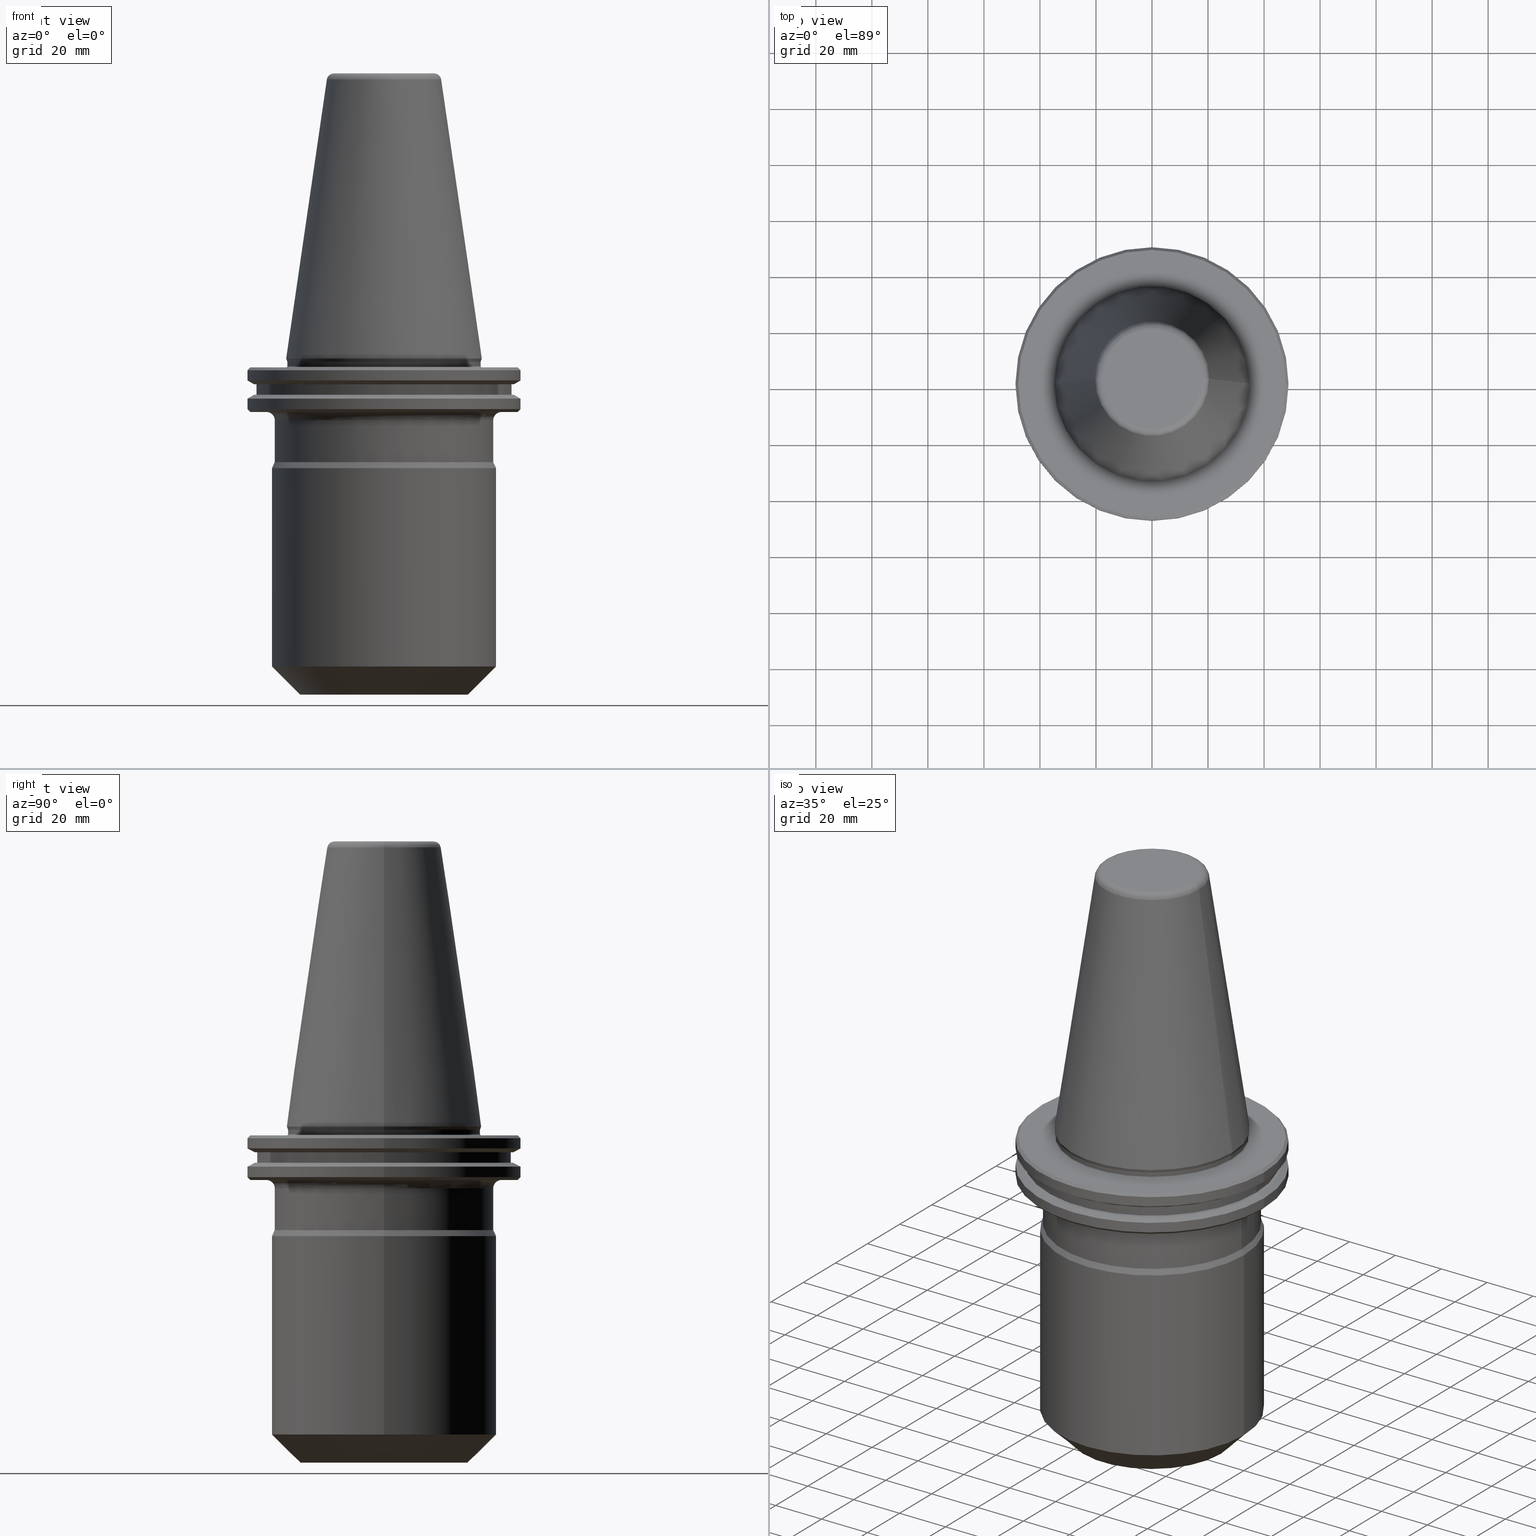
[diagram: canonical four-view strip — front | top / right | iso, engineering-drawing reading convention]
A machine part, canonical four-view strip (front | top / right | iso — engineering-drawing reading convention). The complete STEP part file that produces these views, byte-faithful:
ISO-10303-21;
HEADER;
FILE_DESCRIPTION (( 'STEP AP203' ),
    '1' );
FILE_NAME ('SK50 WE40 120 AD-6.3G15000 SL.STEP',
    '2019-04-30T05:58:03',
    ( '' ),
    ( '' ),
    'SwSTEP 2.0',
    'SolidWorks 2014',
    '' );
FILE_SCHEMA (( 'CONFIG_CONTROL_DESIGN' ));
ENDSEC;

DATA;
#1 = AXIS2_PLACEMENT_3D ( 'NONE', #753, #829, #232 ) ;
#2 = DATE_AND_TIME ( #236, #465 ) ;
#3 = CIRCLE ( 'NONE', #524, 48.74999999999995700 ) ;
#4 = CYLINDRICAL_SURFACE ( 'NONE', #400, 39.00000000000000000 ) ;
#5 = EDGE_LOOP ( 'NONE', ( #910, #49, #786, #937 ) ) ;
#6 = ADVANCED_FACE ( 'NONE', ( #664 ), #404, .T. ) ;
#7 = DIRECTION ( 'NONE',  ( 1.000000000000000000, 0.0000000000000000000, 0.0000000000000000000 ) ) ;
#8 = CARTESIAN_POINT ( 'NONE',  ( -47.74999999999973700, 5.847688465928579700E-015, -19.09999999999995200 ) ) ;
#9 = EDGE_CURVE ( 'NONE', #565, #380, #171, .T. ) ;
#10 = ORIENTED_EDGE ( 'NONE', *, *, #1078, .T. ) ;
#11 = DIRECTION ( 'NONE',  ( 1.000000000000000000, 0.0000000000000000000, 0.0000000000000000000 ) ) ;
#12 = ADVANCED_FACE ( 'NONE', ( #634, #1073 ), #811, .F. ) ;
#13 = DIRECTION ( 'NONE',  ( -0.0000000000000000000, -0.0000000000000000000, 1.000000000000000000 ) ) ;
#14 = DIRECTION ( 'NONE',  ( -0.0000000000000000000, -0.0000000000000000000, 1.000000000000000000 ) ) ;
#15 = EDGE_CURVE ( 'NONE', #374, #589, #167, .T. ) ;
#16 = FACE_BOUND ( 'NONE', #863, .T. ) ;
#17 = AXIS2_PLACEMENT_3D ( 'NONE', #860, #942, #446 ) ;
#18 = VECTOR ( 'NONE', #674, 1000.000000000000000 ) ;
#19 = ORIENTED_EDGE ( 'NONE', *, *, #1068, .T. ) ;
#20 = DIRECTION ( 'NONE',  ( -0.0000000000000000000, -0.0000000000000000000, 1.000000000000000000 ) ) ;
#21 = DIRECTION ( 'NONE',  ( 0.0000000000000000000, 0.0000000000000000000, -1.000000000000000000 ) ) ;
#22 = DIRECTION ( 'NONE',  ( -1.000000000000000000, 0.0000000000000000000, 0.0000000000000000000 ) ) ;
#23 = DIRECTION ( 'NONE',  ( -0.0000000000000000000, -0.0000000000000000000, 1.000000000000000000 ) ) ;
#24 = CARTESIAN_POINT ( 'NONE',  ( 46.37259526419124000, 5.824579090844060500E-015, -12.97500000000006900 ) ) ;
#25 = AXIS2_PLACEMENT_3D ( 'NONE', #890, #976, #478 ) ;
#26 = VERTEX_POINT ( 'NONE', #454 ) ;
#27 = CARTESIAN_POINT ( 'NONE',  ( -34.99999999999992200, 4.286263797015727000E-015, -2.700000000000091200 ) ) ;
#28 = CARTESIAN_POINT ( 'NONE',  ( 39.00000000000000000, 0.0000000000000000000, -36.99549307949040200 ) ) ;
#29 = PERSON_AND_ORGANIZATION ( #356, #986 ) ;
#30 = CARTESIAN_POINT ( 'NONE',  ( 47.74999999999973700, 0.0000000000000000000, -19.09999999999995200 ) ) ;
#31 = DIRECTION ( 'NONE',  ( -0.0000000000000000000, -0.0000000000000000000, 1.000000000000000000 ) ) ;
#32 = EDGE_CURVE ( 'NONE', #221, #1030, #819, .T. ) ;
#33 = VECTOR ( 'NONE', #665, 1000.000000000000000 ) ;
#34 = CARTESIAN_POINT ( 'NONE',  ( -34.49999999999985100, 4.225031457058350000E-015, 101.7499999999999600 ) ) ;
#35 = FACE_OUTER_BOUND ( 'NONE', #541, .T. ) ;
#36 = ORIENTED_EDGE ( 'NONE', *, *, #774, .T. ) ;
#37 = DIRECTION ( 'NONE',  ( -0.0000000000000000000, -0.0000000000000000000, 1.000000000000000000 ) ) ;
#38 = VERTEX_POINT ( 'NONE', #164 ) ;
#39 = DIRECTION ( 'NONE',  ( -0.0000000000000000000, -0.0000000000000000000, 1.000000000000000000 ) ) ;
#40 = CARTESIAN_POINT ( 'NONE',  ( -45.50000000000020600, 5.572142936120482400E-015, 101.7499999999999600 ) ) ;
#41 = ORIENTED_EDGE ( 'NONE', *, *, #127, .F. ) ;
#42 = AXIS2_PLACEMENT_3D ( 'NONE', #540, #792, #635 ) ;
#43 = CARTESIAN_POINT ( 'NONE',  ( -45.50000000000020600, 5.572142936120482400E-015, -12.97500000000006900 ) ) ;
#44 = CARTESIAN_POINT ( 'NONE',  ( -40.00000000000000000, 4.898587196589413000E-015, 158.1180504483445200 ) ) ;
#45 = CONICAL_SURFACE ( 'NONE', #393, 30.00000000000000000, 0.7853981633974507200 ) ;
#46 = CIRCLE ( 'NONE', #81, 34.49999999999975100 ) ;
#47 = CARTESIAN_POINT ( 'NONE',  ( 48.74999999999995700, 0.0000000000000000000, -4.199999999999870500 ) ) ;
#48 = AXIS2_PLACEMENT_3D ( 'NONE', #387, #644, #126 ) ;
#49 = ORIENTED_EDGE ( 'NONE', *, *, #308, .T. ) ;
#50 = APPROVAL_STATUS ( 'not_yet_approved' ) ;
#51 = CARTESIAN_POINT ( 'NONE',  ( 0.0000000000000000000, 47.74999999999995700, -3.199999999999869600 ) ) ;
#52 = EDGE_CURVE ( 'NONE', #1030, #1084, #428, .T. ) ;
#53 = ORIENTED_EDGE ( 'NONE', *, *, #87, .T. ) ;
#54 = CARTESIAN_POINT ( 'NONE',  ( 0.0000000000000000000, 46.37259526419124000, -12.97500000000006900 ) ) ;
#55 = CC_DESIGN_DATE_AND_TIME_ASSIGNMENT ( #850, #886, ( #923 ) ) ;
#56 = ORIENTED_EDGE ( 'NONE', *, *, #661, .F. ) ;
#57 = DIRECTION ( 'NONE',  ( 1.000000000000000000, 0.0000000000000000000, 0.0000000000000000000 ) ) ;
#58 = CONICAL_SURFACE ( 'NONE', #61, 47.74999999999973700, 0.7853981633974482800 ) ;
#59 = VECTOR ( 'NONE', #950, 1000.000000000000000 ) ;
#60 = VERTEX_POINT ( 'NONE', #43 ) ;
#61 = AXIS2_PLACEMENT_3D ( 'NONE', #416, #147, #823 ) ;
#62 = DIRECTION ( 'NONE',  ( 1.000000000000000000, 0.0000000000000000000, 0.0000000000000000000 ) ) ;
#63 = ORIENTED_EDGE ( 'NONE', *, *, #68, .F. ) ;
#64 = ORIENTED_EDGE ( 'NONE', *, *, #945, .F. ) ;
#65 = CARTESIAN_POINT ( 'NONE',  ( 0.0000000000000000000, 0.0000000000000000000, -18.09999999999950400 ) ) ;
#66 = ORIENTED_EDGE ( 'NONE', *, *, #52, .F. ) ;
#67 = ORIENTED_EDGE ( 'NONE', *, *, #677, .T. ) ;
#68 = EDGE_CURVE ( 'NONE', #123, #221, #377, .T. ) ;
#69 = CIRCLE ( 'NONE', #500, 17.92446055806129500 ) ;
#70 = DIRECTION ( 'NONE',  ( 1.000000000000000000, 0.0000000000000000000, 0.0000000000000000000 ) ) ;
#71 = VECTOR ( 'NONE', #511, 1000.000000000000000 ) ;
#72 = ORIENTED_EDGE ( 'NONE', *, *, #265, .T. ) ;
#73 = EDGE_CURVE ( 'NONE', #374, #152, #197, .T. ) ;
#74 = DIRECTION ( 'NONE',  ( 0.8660254037844393700, 1.060575238724907800E-016, -0.4999999999999985000 ) ) ;
#75 = AXIS2_PLACEMENT_3D ( 'NONE', #261, #1023, #459 ) ;
#76 = DIRECTION ( 'NONE',  ( 1.000000000000000000, 0.0000000000000000000, 0.0000000000000000000 ) ) ;
#77 = ORIENTED_EDGE ( 'NONE', *, *, #32, .T. ) ;
#78 = ORIENTED_EDGE ( 'NONE', *, *, #677, .F. ) ;
#79 = CARTESIAN_POINT ( 'NONE',  ( 0.0000000000000000000, 0.0000000000000000000, -4.199999999999870500 ) ) ;
#80 = ORIENTED_EDGE ( 'NONE', *, *, #539, .F. ) ;
#81 = AXIS2_PLACEMENT_3D ( 'NONE', #271, #187, #144 ) ;
#82 = FACE_OUTER_BOUND ( 'NONE', #995, .T. ) ;
#83 = VECTOR ( 'NONE', #23, 1000.000000000000000 ) ;
#84 = ADVANCED_FACE ( 'NONE', ( #793 ), #765, .T. ) ;
#85 = ORIENTED_EDGE ( 'NONE', *, *, #825, .T. ) ;
#86 = CARTESIAN_POINT ( 'NONE',  ( -17.92446055806129500, 2.195113324887274600E-015, 99.25000000000000000 ) ) ;
#87 = EDGE_CURVE ( 'NONE', #26, #568, #988, .T. ) ;
#88 = ORIENTED_EDGE ( 'NONE', *, *, #672, .F. ) ;
#89 = CARTESIAN_POINT ( 'NONE',  ( 0.0000000000000000000, 0.0000000000000000000, -9.224999999999926800 ) ) ;
#90 = ORIENTED_EDGE ( 'NONE', *, *, #319, .F. ) ;
#91 = ADVANCED_FACE ( 'NONE', ( #579 ), #959, .T. ) ;
#92 = ORIENTED_EDGE ( 'NONE', *, *, #960, .T. ) ;
#93 = DIRECTION ( 'NONE',  ( -1.000000000000000000, 0.0000000000000000000, 0.0000000000000000000 ) ) ;
#94 = AXIS2_PLACEMENT_3D ( 'NONE', #429, #507, #849 ) ;
#95 = LOCAL_TIME ( 11, 28, 3.000000000000000000, #326 ) ;
#96 = ADVANCED_FACE ( 'NONE', ( #1048 ), #143, .F. ) ;
#97 = LINE ( 'NONE', #618, #916 ) ;
#98 = PLANE ( 'NONE',  #75 ) ;
#99 = FACE_OUTER_BOUND ( 'NONE', #156, .T. ) ;
#100 = CARTESIAN_POINT ( 'NONE',  ( 20.39829252569114000, 3.387574655494023600E-015, 99.61077055857353500 ) ) ;
#101 = DIRECTION ( 'NONE',  ( -0.0000000000000000000, -0.0000000000000000000, 1.000000000000000000 ) ) ;
#102 = VERTEX_POINT ( 'NONE', #569 ) ;
#103 = DIRECTION ( 'NONE',  ( -0.0000000000000000000, -0.0000000000000000000, 1.000000000000000000 ) ) ;
#104 = DIRECTION ( 'NONE',  ( -0.0000000000000000000, -0.0000000000000000000, 1.000000000000000000 ) ) ;
#105 = ORIENTED_EDGE ( 'NONE', *, *, #482, .F. ) ;
#106 = DIRECTION ( 'NONE',  ( -1.000000000000000000, 1.224646799147355700E-016, 0.0000000000000000000 ) ) ;
#107 = EDGE_LOOP ( 'NONE', ( #914, #991, #1060, #267 ) ) ;
#108 = ORIENTED_EDGE ( 'NONE', *, *, #1019, .F. ) ;
#109 = EDGE_LOOP ( 'NONE', ( #597, #1034, #1033, #339 ) ) ;
#110 = EDGE_CURVE ( 'NONE', #60, #431, #316, .T. ) ;
#111 = EDGE_LOOP ( 'NONE', ( #648, #771, #211, #421 ) ) ;
#112 = FACE_OUTER_BOUND ( 'NONE', #398, .T. ) ;
#113 = PRODUCT_DEFINITION_FORMATION_WITH_SPECIFIED_SOURCE ( 'ANY', '', #770, .NOT_KNOWN. ) ;
#114 = FACE_OUTER_BOUND ( 'NONE', #5, .T. ) ;
#115 = LINE ( 'NONE', #640, #931 ) ;
#116 = CARTESIAN_POINT ( 'NONE',  ( -48.75000000000018500, 5.970153145843369200E-015, -18.09999999999950400 ) ) ;
#117 = CARTESIAN_POINT ( 'NONE',  ( 40.00000000000000000, 4.898587196589413000E-015, -39.13999999999995100 ) ) ;
#118 = DIRECTION ( 'NONE',  ( 0.0000000000000000000, -1.000000000000000000, 0.0000000000000000000 ) ) ;
#119 = ORIENTED_EDGE ( 'NONE', *, *, #9, .F. ) ;
#120 = AXIS2_PLACEMENT_3D ( 'NONE', #437, #613, #888 ) ;
#121 = CARTESIAN_POINT ( 'NONE',  ( -30.00000000000000000, 3.673940397442059200E-015, -120.0000000000000900 ) ) ;
#122 = EDGE_LOOP ( 'NONE', ( #772, #481, #762, #553 ) ) ;
#123 = VERTEX_POINT ( 'NONE', #28 ) ;
#124 = CALENDAR_DATE ( 2019, 30, 4 ) ;
#125 = DIRECTION ( 'NONE',  ( 1.000000000000000000, 0.0000000000000000000, 0.0000000000000000000 ) ) ;
#126 = DIRECTION ( 'NONE',  ( 1.000000000000000000, 0.0000000000000000000, 0.0000000000000000000 ) ) ;
#127 = EDGE_CURVE ( 'NONE', #161, #312, #518, .T. ) ;
#128 = CIRCLE ( 'NONE', #94, 17.92446055806129500 ) ;
#129 = CONICAL_SURFACE ( 'NONE', #631, 48.74999999999995700, 0.7853981633974482800 ) ;
#130 = ORIENTED_EDGE ( 'NONE', *, *, #168, .T. ) ;
#131 = ORIENTED_EDGE ( 'NONE', *, *, #15, .F. ) ;
#132 = DIRECTION ( 'NONE',  ( 0.0000000000000000000, 0.0000000000000000000, -1.000000000000000000 ) ) ;
#133 = VERTEX_POINT ( 'NONE', #883 ) ;
#134 = EDGE_CURVE ( 'NONE', #1065, #320, #115, .T. ) ;
#135 = CARTESIAN_POINT ( 'NONE',  ( 34.49999999999995000, 0.0000000000000000000, -2.700000000000091200 ) ) ;
#136 = CARTESIAN_POINT ( 'NONE',  ( -40.00000000000000000, 0.0000000000000000000, -39.13999999999995100 ) ) ;
#137 = ORIENTED_EDGE ( 'NONE', *, *, #557, .F. ) ;
#138 = PERSON_AND_ORGANIZATION_ROLE ( 'creator' ) ;
#139 = ORIENTED_EDGE ( 'NONE', *, *, #384, .F. ) ;
#140 = CYLINDRICAL_SURFACE ( 'NONE', #372, 40.00000000000000000 ) ;
#141 = FACE_OUTER_BOUND ( 'NONE', #394, .T. ) ;
#142 = AXIS2_PLACEMENT_3D ( 'NONE', #717, #472, #62 ) ;
#143 = TOROIDAL_SURFACE ( 'NONE', #48, 42.00000000000000000, 3.000000000000000000 ) ;
#144 = DIRECTION ( 'NONE',  ( 1.000000000000000000, 0.0000000000000000000, 0.0000000000000000000 ) ) ;
#145 = DIRECTION ( 'NONE',  ( -0.0000000000000000000, -0.0000000000000000000, 1.000000000000000000 ) ) ;
#146 = EDGE_CURVE ( 'NONE', #867, #133, #551, .T. ) ;
#147 = DIRECTION ( 'NONE',  ( -0.0000000000000000000, -0.0000000000000000000, 1.000000000000000000 ) ) ;
#148 = PERSON_AND_ORGANIZATION ( #356, #986 ) ;
#149 = FACE_BOUND ( 'NONE', #291, .T. ) ;
#150 = ADVANCED_BREP_SHAPE_REPRESENTATION ( 'SK50 WE40 120 AD-6.3G15000 SL', ( #337, #817 ), #666 ) ;
#151 = CIRCLE ( 'NONE', #741, 39.00000000000000000 ) ;
#152 = VERTEX_POINT ( 'NONE', #1045 ) ;
#153 = ORIENTED_EDGE ( 'NONE', *, *, #714, .T. ) ;
#154 = AXIS2_PLACEMENT_3D ( 'NONE', #1044, #952, #458 ) ;
#155 = EDGE_LOOP ( 'NONE', ( #711, #336, #727, #805 ) ) ;
#156 = EDGE_LOOP ( 'NONE', ( #457, #442, #749, #779 ) ) ;
#157 = DIRECTION ( 'NONE',  ( -0.0000000000000000000, -0.0000000000000000000, 1.000000000000000000 ) ) ;
#158 = DIRECTION ( 'NONE',  ( 1.000000000000000000, 0.0000000000000000000, 0.0000000000000000000 ) ) ;
#159 = DIRECTION ( 'NONE',  ( 0.4226182617407014400, 5.175581015019683400E-017, -0.9063077870366489400 ) ) ;
#160 = ORIENTED_EDGE ( 'NONE', *, *, #512, .F. ) ;
#161 = VERTEX_POINT ( 'NONE', #135 ) ;
#162 = AXIS2_PLACEMENT_3D ( 'NONE', #900, #118, #405 ) ;
#163 = DIRECTION ( 'NONE',  ( -0.0000000000000000000, -0.0000000000000000000, 1.000000000000000000 ) ) ;
#164 = CARTESIAN_POINT ( 'NONE',  ( -40.00000000000000000, 0.0000000000000000000, -39.13999999999995100 ) ) ;
#165 = CIRCLE ( 'NONE', #484, 48.74999999999995700 ) ;
#166 = FACE_OUTER_BOUND ( 'NONE', #318, .T. ) ;
#167 = CIRCLE ( 'NONE', #757, 47.74999999999995700 ) ;
#168 = EDGE_CURVE ( 'NONE', #38, #751, #490, .T. ) ;
#169 = APPROVAL ( #392, 'UNSPECIFIED' ) ;
#170 = ADVANCED_FACE ( 'NONE', ( #747 ), #427, .F. ) ;
#171 = LINE ( 'NONE', #224, #841 ) ;
#172 = DIRECTION ( 'NONE',  ( 1.000000000000000000, 0.0000000000000000000, 0.0000000000000000000 ) ) ;
#173 = DIRECTION ( 'NONE',  ( 1.000000000000000000, 0.0000000000000000000, 0.0000000000000000000 ) ) ;
#174 = AXIS2_PLACEMENT_3D ( 'NONE', #1069, #593, #173 ) ;
#175 = ADVANCED_FACE ( 'NONE', ( #263 ), #467, .T. ) ;
#176 = COORDINATED_UNIVERSAL_TIME_OFFSET ( 5, 30, .AHEAD. ) ;
#177 = FACE_OUTER_BOUND ( 'NONE', #667, .T. ) ;
#178 = VECTOR ( 'NONE', #159, 1000.000000000000100 ) ;
#179 = ORIENTED_EDGE ( 'NONE', *, *, #1046, .T. ) ;
#180 = VERTEX_POINT ( 'NONE', #47 ) ;
#181 = CARTESIAN_POINT ( 'NONE',  ( 0.0000000000000000000, 0.0000000000000000000, -12.97500000000006900 ) ) ;
#182 = ADVANCED_FACE ( 'NONE', ( #35 ), #4, .T. ) ;
#183 = EDGE_CURVE ( 'NONE', #312, #102, #721, .T. ) ;
#184 = EDGE_LOOP ( 'NONE', ( #298, #229, #210, #521 ) ) ;
#185 = VERTEX_POINT ( 'NONE', #654 ) ;
#186 = DIRECTION ( 'NONE',  ( 0.0000000000000000000, -0.0000000000000000000, 1.000000000000000000 ) ) ;
#187 = DIRECTION ( 'NONE',  ( -0.0000000000000000000, -0.0000000000000000000, 1.000000000000000000 ) ) ;
#188 = DIRECTION ( 'NONE',  ( 1.000000000000000000, 0.0000000000000000000, 0.0000000000000000000 ) ) ;
#189 = CARTESIAN_POINT ( 'NONE',  ( 0.0000000000000000000, 0.0000000000000000000, -9.224999999999926800 ) ) ;
#190 = DIRECTION ( 'NONE',  ( -0.0000000000000000000, -0.0000000000000000000, 1.000000000000000000 ) ) ;
#191 = EDGE_CURVE ( 'NONE', #832, #558, #671, .T. ) ;
#192 = CARTESIAN_POINT ( 'NONE',  ( 0.0000000000000000000, 0.0000000000000000000, -110.0000000000001300 ) ) ;
#193 = AXIS2_PLACEMENT_3D ( 'NONE', #787, #104, #1055 ) ;
#194 = ORIENTED_EDGE ( 'NONE', *, *, #889, .T. ) ;
#195 = CIRCLE ( 'NONE', #1005, 48.75000000000018500 ) ;
#196 = CYLINDRICAL_SURFACE ( 'NONE', #488, 40.00000000000000000 ) ;
#197 = LINE ( 'NONE', #780, #1013 ) ;
#198 = CARTESIAN_POINT ( 'NONE',  ( 0.0000000000000000000, 0.0000000000000000000, 101.7499999999999600 ) ) ;
#199 = DIRECTION ( 'NONE',  ( 0.0000000000000000000, 0.0000000000000000000, -1.000000000000000000 ) ) ;
#200 = AXIS2_PLACEMENT_3D ( 'NONE', #415, #1077, #728 ) ;
#201 = CARTESIAN_POINT ( 'NONE',  ( 40.00000000000000000, 0.0000000000000000000, -110.0000000000001300 ) ) ;
#202 = DIRECTION ( 'NONE',  ( -0.0000000000000000000, -0.0000000000000000000, 1.000000000000000000 ) ) ;
#203 = CARTESIAN_POINT ( 'NONE',  ( -34.92500000000009700, 0.0000000000000000000, -5.551115123125782700E-014 ) ) ;
#204 = EDGE_CURVE ( 'NONE', #966, #867, #880, .T. ) ;
#205 = LOCAL_TIME ( 11, 28, 3.000000000000000000, #436 ) ;
#206 = FACE_OUTER_BOUND ( 'NONE', #730, .T. ) ;
#207 = CIRCLE ( 'NONE', #162, 2.500000000000085300 ) ;
#208 = CARTESIAN_POINT ( 'NONE',  ( 0.0000000000000000000, 0.0000000000000000000, -22.09999999999995200 ) ) ;
#209 = CARTESIAN_POINT ( 'NONE',  ( 0.0000000000000000000, 0.0000000000000000000, -19.09999999999995200 ) ) ;
#210 = ORIENTED_EDGE ( 'NONE', *, *, #580, .T. ) ;
#211 = ORIENTED_EDGE ( 'NONE', *, *, #482, .T. ) ;
#212 = DIRECTION ( 'NONE',  ( -0.7071067811865474600, 8.659560562354931600E-017, 0.7071067811865475700 ) ) ;
#213 = CARTESIAN_POINT ( 'NONE',  ( 40.00000000000000000, 0.0000000000000000000, 158.1180504483445200 ) ) ;
#214 = PERSON_AND_ORGANIZATION_ROLE ( 'creator' ) ;
#215 = EDGE_LOOP ( 'NONE', ( #413, #723, #948, #371 ) ) ;
#216 = DIRECTION ( 'NONE',  ( 1.000000000000000000, 0.0000000000000000000, 0.0000000000000000000 ) ) ;
#217 = APPROVAL_STATUS ( 'not_yet_approved' ) ;
#218 = AXIS2_PLACEMENT_3D ( 'NONE', #227, #13, #430 ) ;
#219 = CARTESIAN_POINT ( 'NONE',  ( 0.0000000000000000000, 0.0000000000000000000, -3.199999999999869600 ) ) ;
#220 = CARTESIAN_POINT ( 'NONE',  ( 0.0000000000000000000, 0.0000000000000000000, -39.13999999999995100 ) ) ;
#221 = VERTEX_POINT ( 'NONE', #1008 ) ;
#222 = ORIENTED_EDGE ( 'NONE', *, *, #847, .T. ) ;
#223 = DIRECTION ( 'NONE',  ( 1.000000000000000000, 0.0000000000000000000, 0.0000000000000000000 ) ) ;
#224 = CARTESIAN_POINT ( 'NONE',  ( -34.49999999999975100, 4.225031457058338200E-015, -1.167677903268715700 ) ) ;
#225 = AXIS2_PLACEMENT_3D ( 'NONE', #657, #544, #924 ) ;
#226 = LINE ( 'NONE', #957, #680 ) ;
#227 = CARTESIAN_POINT ( 'NONE',  ( 0.0000000000000000000, 0.0000000000000000000, -1.167677903268715700 ) ) ;
#228 = TOROIDAL_SURFACE ( 'NONE', #379, 34.99999999999992200, 0.4999999999999726900 ) ;
#229 = ORIENTED_EDGE ( 'NONE', *, *, #460, .T. ) ;
#230 = ORIENTED_EDGE ( 'NONE', *, *, #231, .F. ) ;
#231 = EDGE_CURVE ( 'NONE', #278, #1039, #207, .T. ) ;
#232 = DIRECTION ( 'NONE',  ( 1.000000000000000000, 0.0000000000000000000, 0.0000000000000000000 ) ) ;
#233 = CC_DESIGN_APPROVAL ( #169, ( #113 ) ) ;
#234 = EDGE_LOOP ( 'NONE', ( #956, #367, #272, #130 ) ) ;
#235 = PLANE ( 'NONE',  #912 ) ;
#236 = CALENDAR_DATE ( 2019, 30, 4 ) ;
#237 = FACE_OUTER_BOUND ( 'NONE', #107, .T. ) ;
#238 = CARTESIAN_POINT ( 'NONE',  ( 0.0000000000000000000, 0.0000000000000000000, -9.224999999999926800 ) ) ;
#239 = AXIS2_PLACEMENT_3D ( 'NONE', #245, #1076, #813 ) ;
#240 = CIRCLE ( 'NONE', #280, 45.50000000000020600 ) ;
#241 = DIRECTION ( 'NONE',  ( 1.000000000000000000, 0.0000000000000000000, 0.0000000000000000000 ) ) ;
#242 = ORIENTED_EDGE ( 'NONE', *, *, #904, .T. ) ;
#243 = DIRECTION ( 'NONE',  ( 1.000000000000000000, 0.0000000000000000000, 0.0000000000000000000 ) ) ;
#244 = EDGE_LOOP ( 'NONE', ( #1029, #322, #19, #311 ) ) ;
#245 = CARTESIAN_POINT ( 'NONE',  ( 0.0000000000000000000, 0.0000000000000000000, 101.7499999999999600 ) ) ;
#246 = EDGE_CURVE ( 'NONE', #431, #185, #240, .T. ) ;
#247 = CARTESIAN_POINT ( 'NONE',  ( 0.0000000000000000000, 0.0000000000000000000, -5.551115123125782700E-014 ) ) ;
#248 = CARTESIAN_POINT ( 'NONE',  ( 0.0000000000000000000, 0.0000000000000000000, -19.09999999999995200 ) ) ;
#249 = FACE_OUTER_BOUND ( 'NONE', #975, .T. ) ;
#250 = EDGE_CURVE ( 'NONE', #630, #1085, #853, .T. ) ;
#251 = CIRCLE ( 'NONE', #200, 46.37259526419124000 ) ;
#252 = EDGE_LOOP ( 'NONE', ( #419, #705, #599, #830 ) ) ;
#253 = AXIS2_PLACEMENT_3D ( 'NONE', #875, #186, #270 ) ;
#254 = CARTESIAN_POINT ( 'NONE',  ( -48.75000000000018500, 5.970153145843369200E-015, 101.7499999999999600 ) ) ;
#255 = CARTESIAN_POINT ( 'NONE',  ( 34.49999999999985100, 0.0000000000000000000, 101.7499999999999600 ) ) ;
#256 = AXIS2_PLACEMENT_3D ( 'NONE', #1097, #581, #901 ) ;
#257 = ORIENTED_EDGE ( 'NONE', *, *, #302, .T. ) ;
#258 = ADVANCED_FACE ( 'NONE', ( #650 ), #389, .T. ) ;
#259 = DIRECTION ( 'NONE',  ( -0.0000000000000000000, -0.0000000000000000000, 1.000000000000000000 ) ) ;
#260 = PERSON_AND_ORGANIZATION ( #356, #986 ) ;
#261 = CARTESIAN_POINT ( 'NONE',  ( 0.0000000000000000000, 17.92446055806129500, 101.7500000000000100 ) ) ;
#262 = CIRCLE ( 'NONE', #408, 3.000000000000002700 ) ;
#263 = FACE_OUTER_BOUND ( 'NONE', #155, .T. ) ;
#264 = ADVANCED_FACE ( 'NONE', ( #1082 ), #1028, .T. ) ;
#265 = EDGE_CURVE ( 'NONE', #123, #751, #828, .T. ) ;
#266 = ORIENTED_EDGE ( 'NONE', *, *, #794, .T. ) ;
#267 = ORIENTED_EDGE ( 'NONE', *, *, #134, .F. ) ;
#268 = ADVANCED_FACE ( 'NONE', ( #1058 ), #129, .T. ) ;
#269 = EDGE_LOOP ( 'NONE', ( #351, #179, #493, #739 ) ) ;
#270 = DIRECTION ( 'NONE',  ( 1.000000000000000000, 0.0000000000000000000, 0.0000000000000000000 ) ) ;
#271 = CARTESIAN_POINT ( 'NONE',  ( 0.0000000000000000000, 0.0000000000000000000, -1.167677903268715700 ) ) ;
#272 = ORIENTED_EDGE ( 'NONE', *, *, #418, .T. ) ;
#273 = DIRECTION ( 'NONE',  ( -0.0000000000000000000, -0.0000000000000000000, 1.000000000000000000 ) ) ;
#274 = AXIS2_PLACEMENT_3D ( 'NONE', #352, #461, #604 ) ;
#275 = DIRECTION ( 'NONE',  ( 1.000000000000000000, 0.0000000000000000000, 0.0000000000000000000 ) ) ;
#276 = CIRCLE ( 'NONE', #567, 46.37259526419124000 ) ;
#277 = LINE ( 'NONE', #136, #480 ) ;
#278 = VERTEX_POINT ( 'NONE', #100 ) ;
#279 = CARTESIAN_POINT ( 'NONE',  ( 17.92446055806129500, 0.0000000000000000000, 101.7500000000000900 ) ) ;
#280 = AXIS2_PLACEMENT_3D ( 'NONE', #89, #103, #510 ) ;
#281 = DIRECTION ( 'NONE',  ( 1.000000000000000000, 0.0000000000000000000, 0.0000000000000000000 ) ) ;
#282 = CARTESIAN_POINT ( 'NONE',  ( -48.74999999999995700, 5.970153145843342400E-015, 101.7499999999999600 ) ) ;
#283 = ORIENTED_EDGE ( 'NONE', *, *, #745, .T. ) ;
#284 = VERTEX_POINT ( 'NONE', #201 ) ;
#285 = DIRECTION ( 'NONE',  ( -0.0000000000000000000, -0.0000000000000000000, 1.000000000000000000 ) ) ;
#286 = EDGE_CURVE ( 'NONE', #832, #867, #362, .T. ) ;
#287 = CC_DESIGN_PERSON_AND_ORGANIZATION_ASSIGNMENT ( #148, #214, ( #113 ) ) ;
#288 = DIRECTION ( 'NONE',  ( -0.0000000000000000000, -0.0000000000000000000, 1.000000000000000000 ) ) ;
#289 = CIRCLE ( 'NONE', #295, 20.39829252569114000 ) ;
#290 = VECTOR ( 'NONE', #713, 1000.000000000000000 ) ;
#291 = EDGE_LOOP ( 'NONE', ( #395, #625 ) ) ;
#292 = DIRECTION ( 'NONE',  ( 1.000000000000000000, 0.0000000000000000000, 0.0000000000000000000 ) ) ;
#293 = VERTEX_POINT ( 'NONE', #646 ) ;
#294 = DIRECTION ( 'NONE',  ( 1.224646799147353200E-016, 1.000000000000000000, 0.0000000000000000000 ) ) ;
#295 = AXIS2_PLACEMENT_3D ( 'NONE', #913, #20, #842 ) ;
#296 = ORIENTED_EDGE ( 'NONE', *, *, #672, .T. ) ;
#297 = DIRECTION ( 'NONE',  ( 0.0000000000000000000, -1.000000000000000000, 0.0000000000000000000 ) ) ;
#298 = ORIENTED_EDGE ( 'NONE', *, *, #614, .F. ) ;
#299 = CARTESIAN_POINT ( 'NONE',  ( 0.0000000000000000000, 0.0000000000000000000, -39.13999999999995100 ) ) ;
#300 = SECURITY_CLASSIFICATION_LEVEL ( 'unclassified' ) ;
#301 = DIRECTION ( 'NONE',  ( 0.0000000000000000000, 0.0000000000000000000, -1.000000000000000000 ) ) ;
#302 = EDGE_CURVE ( 'NONE', #583, #133, #412, .T. ) ;
#303 = CARTESIAN_POINT ( 'NONE',  ( 48.75000000000018500, 5.970153145843369200E-015, -14.34759526419204800 ) ) ;
#304 = FACE_OUTER_BOUND ( 'NONE', #831, .T. ) ;
#305 = TOROIDAL_SURFACE ( 'NONE', #1074, 17.92446055806129500, 2.500000000000083000 ) ;
#306 = DIRECTION ( 'NONE',  ( 1.000000000000000000, 0.0000000000000000000, 0.0000000000000000000 ) ) ;
#307 = ORIENTED_EDGE ( 'NONE', *, *, #689, .T. ) ;
#308 = EDGE_CURVE ( 'NONE', #293, #832, #588, .T. ) ;
#309 = CARTESIAN_POINT ( 'NONE',  ( 0.0000000000000000000, 0.0000000000000000000, 101.7499999999999600 ) ) ;
#310 = AXIS2_PLACEMENT_3D ( 'NONE', #27, #369, #106 ) ;
#311 = ORIENTED_EDGE ( 'NONE', *, *, #733, .F. ) ;
#312 = VERTEX_POINT ( 'NONE', #357 ) ;
#313 = AXIS2_PLACEMENT_3D ( 'NONE', #86, #1015, #547 ) ;
#314 = DIRECTION ( 'NONE',  ( 0.0000000000000000000, 0.0000000000000000000, -1.000000000000000000 ) ) ;
#315 = LINE ( 'NONE', #44, #515 ) ;
#316 = LINE ( 'NONE', #40, #83 ) ;
#317 = CARTESIAN_POINT ( 'NONE',  ( 0.0000000000000000000, 0.0000000000000000000, 158.1180504483445200 ) ) ;
#318 = EDGE_LOOP ( 'NONE', ( #954, #257, #909, #961 ) ) ;
#319 = EDGE_CURVE ( 'NONE', #1084, #1030, #151, .T. ) ;
#320 = VERTEX_POINT ( 'NONE', #731 ) ;
#321 = CARTESIAN_POINT ( 'NONE',  ( 0.0000000000000000000, 0.0000000000000000000, -7.852404735807838600 ) ) ;
#322 = ORIENTED_EDGE ( 'NONE', *, *, #591, .T. ) ;
#323 = ORIENTED_EDGE ( 'NONE', *, *, #938, .F. ) ;
#324 = APPLICATION_CONTEXT ( 'configuration controlled 3d designs of mechanical parts and assemblies' ) ;
#325 = ORIENTED_EDGE ( 'NONE', *, *, #364, .F. ) ;
#326 = COORDINATED_UNIVERSAL_TIME_OFFSET ( 5, 30, .AHEAD. ) ;
#327 = FACE_OUTER_BOUND ( 'NONE', #111, .T. ) ;
#328 = AXIS2_PLACEMENT_3D ( 'NONE', #317, #163, #516 ) ;
#329 = FACE_OUTER_BOUND ( 'NONE', #627, .T. ) ;
#330 = CARTESIAN_POINT ( 'NONE',  ( 34.99999999999992200, 0.0000000000000000000, -3.199999999999966900 ) ) ;
#331 = ORIENTED_EDGE ( 'NONE', *, *, #87, .F. ) ;
#332 = DIRECTION ( 'NONE',  ( -0.0000000000000000000, -0.0000000000000000000, 1.000000000000000000 ) ) ;
#333 = DIRECTION ( 'NONE',  ( 0.7071067811865474600, 0.0000000000000000000, 0.7071067811865475700 ) ) ;
#334 = ORIENTED_EDGE ( 'NONE', *, *, #344, .F. ) ;
#335 = AXIS2_PLACEMENT_3D ( 'NONE', #1041, #1012, #973 ) ;
#336 = ORIENTED_EDGE ( 'NONE', *, *, #286, .T. ) ;
#337 = MANIFOLD_SOLID_BREP ( 'Fillet1', #921 ) ;
#338 = CARTESIAN_POINT ( 'NONE',  ( 0.0000000000000000000, 0.0000000000000000000, -2.700000000000091200 ) ) ;
#339 = ORIENTED_EDGE ( 'NONE', *, *, #591, .F. ) ;
#340 = CARTESIAN_POINT ( 'NONE',  ( 0.0000000000000000000, 0.0000000000000000000, 101.7499999999999600 ) ) ;
#341 = DIRECTION ( 'NONE',  ( 1.000000000000000000, 0.0000000000000000000, 0.0000000000000000000 ) ) ;
#342 = TOROIDAL_SURFACE ( 'NONE', #598, 42.00000000000000000, 3.000000000000000000 ) ;
#343 = ADVANCED_FACE ( 'NONE', ( #777 ), #534, .T. ) ;
#344 = EDGE_CURVE ( 'NONE', #284, #568, #756, .T. ) ;
#345 = CONICAL_SURFACE ( 'NONE', #767, 48.74999999999995700, 0.7853981633974482800 ) ;
#346 = VECTOR ( 'NONE', #918, 1000.000000000000000 ) ;
#347 = CC_DESIGN_PERSON_AND_ORGANIZATION_ASSIGNMENT ( #1024, #803, ( #113 ) ) ;
#348 = CARTESIAN_POINT ( 'NONE',  ( 0.0000000000000000000, 0.0000000000000000000, -22.09999999999995200 ) ) ;
#349 = ADVANCED_FACE ( 'NONE', ( #329, #564 ), #545, .F. ) ;
#350 = DIRECTION ( 'NONE',  ( -0.0000000000000000000, -0.0000000000000000000, 1.000000000000000000 ) ) ;
#351 = ORIENTED_EDGE ( 'NONE', *, *, #637, .F. ) ;
#352 = CARTESIAN_POINT ( 'NONE',  ( 0.0000000000000000000, 0.0000000000000000000, -19.09999999999995200 ) ) ;
#353 = DIRECTION ( 'NONE',  ( 1.000000000000000000, 0.0000000000000000000, 0.0000000000000000000 ) ) ;
#354 = ORIENTED_EDGE ( 'NONE', *, *, #733, .T. ) ;
#355 = AXIS2_PLACEMENT_3D ( 'NONE', #816, #993, #158 ) ;
#356 = PERSON ( 'UNSPECIFIED', 'UNSPECIFIED', 'UNSPECIFIED', ('UNSPECIFIED'), ('UNSPECIFIED'), ('UNSPECIFIED') ) ;
#357 = CARTESIAN_POINT ( 'NONE',  ( 34.49999999999975100, 0.0000000000000000000, -1.167677903268715700 ) ) ;
#358 = ADVANCED_FACE ( 'NONE', ( #99 ), #305, .T. ) ;
#359 = LOCAL_TIME ( 11, 28, 3.000000000000000000, #586 ) ;
#360 = FACE_OUTER_BOUND ( 'NONE', #854, .T. ) ;
#361 = DIRECTION ( 'NONE',  ( -0.0000000000000000000, -0.0000000000000000000, 1.000000000000000000 ) ) ;
#362 = CIRCLE ( 'NONE', #684, 48.75000000000018500 ) ;
#363 = ORIENTED_EDGE ( 'NONE', *, *, #996, .T. ) ;
#364 = EDGE_CURVE ( 'NONE', #1093, #1065, #974, .T. ) ;
#365 = ORIENTED_EDGE ( 'NONE', *, *, #624, .F. ) ;
#366 = ADVANCED_FACE ( 'NONE', ( #619 ), #917, .T. ) ;
#367 = ORIENTED_EDGE ( 'NONE', *, *, #868, .F. ) ;
#368 = CARTESIAN_POINT ( 'NONE',  ( 0.0000000000000000000, 0.0000000000000000000, -19.09999999999995200 ) ) ;
#369 = DIRECTION ( 'NONE',  ( 1.224646799147353200E-016, 1.000000000000000000, 0.0000000000000000000 ) ) ;
#370 = EDGE_CURVE ( 'NONE', #565, #312, #46, .T. ) ;
#371 = ORIENTED_EDGE ( 'NONE', *, *, #996, .F. ) ;
#372 = AXIS2_PLACEMENT_3D ( 'NONE', #605, #361, #538 ) ;
#373 = DESIGN_CONTEXT ( 'detailed design', #1070, 'design' ) ;
#374 = VERTEX_POINT ( 'NONE', #953 ) ;
#375 = CIRCLE ( 'NONE', #310, 0.4999999999999726900 ) ;
#376 = CIRCLE ( 'NONE', #1054, 48.75000000000018500 ) ;
#377 = CIRCLE ( 'NONE', #915, 39.00000000000000000 ) ;
#378 = CARTESIAN_POINT ( 'NONE',  ( 0.0000000000000000000, 0.0000000000000000000, -1.167677903268715700 ) ) ;
#379 = AXIS2_PLACEMENT_3D ( 'NONE', #338, #498, #76 ) ;
#380 = VERTEX_POINT ( 'NONE', #933 ) ;
#381 = DIRECTION ( 'NONE',  ( 1.000000000000000000, 0.0000000000000000000, 0.0000000000000000000 ) ) ;
#382 = DIRECTION ( 'NONE',  ( 0.0000000000000000000, 0.0000000000000000000, -1.000000000000000000 ) ) ;
#383 =( NAMED_UNIT ( * ) PLANE_ANGLE_UNIT ( ) SI_UNIT ( $, .RADIAN. ) );
#384 = EDGE_CURVE ( 'NONE', #1085, #630, #946, .T. ) ;
#385 = APPROVAL_DATE_TIME ( #616, #169 ) ;
#386 = DIRECTION ( 'NONE',  ( -0.0000000000000000000, -0.0000000000000000000, 1.000000000000000000 ) ) ;
#387 = CARTESIAN_POINT ( 'NONE',  ( 0.0000000000000000000, 0.0000000000000000000, -22.09999999999995200 ) ) ;
#388 = VECTOR ( 'NONE', #157, 1000.000000000000000 ) ;
#389 = CONICAL_SURFACE ( 'NONE', #505, 46.37259526419079900, 1.047197551196604700 ) ;
#390 = ORIENTED_EDGE ( 'NONE', *, *, #438, .T. ) ;
#391 = ORIENTED_EDGE ( 'NONE', *, *, #761, .F. ) ;
#392 = APPROVAL_STATUS ( 'not_yet_approved' ) ;
#393 = AXIS2_PLACEMENT_3D ( 'NONE', #735, #715, #520 ) ;
#394 = EDGE_LOOP ( 'NONE', ( #137, #296, #622, #1038 ) ) ;
#395 = ORIENTED_EDGE ( 'NONE', *, *, #922, .F. ) ;
#396 = CARTESIAN_POINT ( 'NONE',  ( 0.0000000000000000000, 0.0000000000000000000, -3.199999999999869600 ) ) ;
#397 = DIRECTION ( 'NONE',  ( -0.0000000000000000000, -0.0000000000000000000, 1.000000000000000000 ) ) ;
#398 = EDGE_LOOP ( 'NONE', ( #812, #307, #90, #652 ) ) ;
#399 = DIRECTION ( 'NONE',  ( -0.0000000000000000000, -0.0000000000000000000, 1.000000000000000000 ) ) ;
#400 = AXIS2_PLACEMENT_3D ( 'NONE', #517, #797, #353 ) ;
#401 = CIRCLE ( 'NONE', #17, 30.00000000000000000 ) ;
#402 = FACE_OUTER_BOUND ( 'NONE', #473, .T. ) ;
#403 = DIRECTION ( 'NONE',  ( -1.000000000000000000, 0.0000000000000000000, -0.0000000000000000000 ) ) ;
#404 = CONICAL_SURFACE ( 'NONE', #656, 30.00000000000000000, 0.7853981633974507200 ) ;
#405 = DIRECTION ( 'NONE',  ( 0.0000000000000000000, 0.0000000000000000000, -1.000000000000000000 ) ) ;
#406 = EDGE_CURVE ( 'NONE', #278, #102, #503, .T. ) ;
#407 = SECURITY_CLASSIFICATION ( '', '', #300 ) ;
#408 = AXIS2_PLACEMENT_3D ( 'NONE', #928, #294, #968 ) ;
#409 = APPROVAL_PERSON_ORGANIZATION ( #643, #169, #971 ) ;
#410 = CARTESIAN_POINT ( 'NONE',  ( 0.0000000000000000000, 0.0000000000000000000, -39.13999999999995100 ) ) ;
#411 = VECTOR ( 'NONE', #543, 1000.000000000000000 ) ;
#412 = LINE ( 'NONE', #303, #802 ) ;
#413 = ORIENTED_EDGE ( 'NONE', *, *, #814, .F. ) ;
#414 = ORIENTED_EDGE ( 'NONE', *, *, #68, .T. ) ;
#415 = CARTESIAN_POINT ( 'NONE',  ( 0.0000000000000000000, 0.0000000000000000000, -12.97500000000006900 ) ) ;
#416 = CARTESIAN_POINT ( 'NONE',  ( 0.0000000000000000000, 0.0000000000000000000, -19.09999999999995200 ) ) ;
#417 = ORIENTED_EDGE ( 'NONE', *, *, #308, .F. ) ;
#418 = EDGE_CURVE ( 'NONE', #221, #38, #277, .T. ) ;
#419 = ORIENTED_EDGE ( 'NONE', *, *, #596, .T. ) ;
#420 = DIRECTION ( 'NONE',  ( -0.0000000000000000000, -0.0000000000000000000, 1.000000000000000000 ) ) ;
#421 = ORIENTED_EDGE ( 'NONE', *, *, #319, .T. ) ;
#422 = EDGE_CURVE ( 'NONE', #1093, #729, #709, .T. ) ;
#423 = CIRCLE ( 'NONE', #949, 34.49999999999975100 ) ;
#424 = AXIS2_PLACEMENT_3D ( 'NONE', #798, #297, #882 ) ;
#425 = CIRCLE ( 'NONE', #432, 40.00000000000000000 ) ;
#426 = DIRECTION ( 'NONE',  ( 1.000000000000000000, 0.0000000000000000000, 0.0000000000000000000 ) ) ;
#427 = PLANE ( 'NONE',  #225 ) ;
#428 = CIRCLE ( 'NONE', #862, 39.00000000000000000 ) ;
#429 = CARTESIAN_POINT ( 'NONE',  ( 0.0000000000000000000, 0.0000000000000000000, 101.7500000000000900 ) ) ;
#430 = DIRECTION ( 'NONE',  ( 1.000000000000000000, 0.0000000000000000000, 0.0000000000000000000 ) ) ;
#431 = VERTEX_POINT ( 'NONE', #1051 ) ;
#432 = AXIS2_PLACEMENT_3D ( 'NONE', #891, #273, #858 ) ;
#433 = DIRECTION ( 'NONE',  ( -0.0000000000000000000, -0.0000000000000000000, 1.000000000000000000 ) ) ;
#434 = ADVANCED_FACE ( 'NONE', ( #681 ), #894, .F. ) ;
#435 = DIRECTION ( 'NONE',  ( -0.0000000000000000000, -0.0000000000000000000, 1.000000000000000000 ) ) ;
#436 = COORDINATED_UNIVERSAL_TIME_OFFSET ( 5, 30, .AHEAD. ) ;
#437 = CARTESIAN_POINT ( 'NONE',  ( 0.0000000000000000000, 0.0000000000000000000, 101.7499999999999600 ) ) ;
#438 = EDGE_CURVE ( 'NONE', #583, #750, #251, .T. ) ;
#439 = CIRCLE ( 'NONE', #584, 42.00000000000000000 ) ;
#440 = VECTOR ( 'NONE', #14, 1000.000000000000000 ) ;
#441 = ADVANCED_FACE ( 'NONE', ( #737 ), #228, .F. ) ;
#442 = ORIENTED_EDGE ( 'NONE', *, *, #661, .T. ) ;
#443 = ORIENTED_EDGE ( 'NONE', *, *, #370, .T. ) ;
#444 = DIRECTION ( 'NONE',  ( 1.000000000000000000, 0.0000000000000000000, 0.0000000000000000000 ) ) ;
#445 = ORIENTED_EDGE ( 'NONE', *, *, #476, .T. ) ;
#446 = DIRECTION ( 'NONE',  ( 1.000000000000000000, 0.0000000000000000000, 0.0000000000000000000 ) ) ;
#447 = ADVANCED_FACE ( 'NONE', ( #866 ), #196, .T. ) ;
#448 = DIRECTION ( 'NONE',  ( -0.0000000000000000000, -0.0000000000000000000, 1.000000000000000000 ) ) ;
#449 = AXIS2_PLACEMENT_3D ( 'NONE', #554, #202, #932 ) ;
#450 = DIRECTION ( 'NONE',  ( 1.000000000000000000, 0.0000000000000000000, 0.0000000000000000000 ) ) ;
#451 = EDGE_LOOP ( 'NONE', ( #417, #222, #621, #699 ) ) ;
#452 = FACE_OUTER_BOUND ( 'NONE', #122, .T. ) ;
#453 = DIRECTION ( 'NONE',  ( 1.000000000000000000, 0.0000000000000000000, 0.0000000000000000000 ) ) ;
#454 = CARTESIAN_POINT ( 'NONE',  ( -30.00000000000000000, 4.286263797015735700E-015, -120.0000000000000900 ) ) ;
#455 = LINE ( 'NONE', #1036, #839 ) ;
#456 = AXIS2_PLACEMENT_3D ( 'NONE', #396, #1050, #216 ) ;
#457 = ORIENTED_EDGE ( 'NONE', *, *, #476, .F. ) ;
#458 = DIRECTION ( 'NONE',  ( 1.000000000000000000, 0.0000000000000000000, 0.0000000000000000000 ) ) ;
#459 = DIRECTION ( 'NONE',  ( -1.000000000000000000, 0.0000000000000000000, -0.0000000000000000000 ) ) ;
#460 = EDGE_CURVE ( 'NONE', #568, #284, #425, .T. ) ;
#461 = DIRECTION ( 'NONE',  ( -0.0000000000000000000, -0.0000000000000000000, 1.000000000000000000 ) ) ;
#462 = ORIENTED_EDGE ( 'NONE', *, *, #889, .F. ) ;
#463 = CC_DESIGN_PERSON_AND_ORGANIZATION_ASSIGNMENT ( #800, #658, ( #407 ) ) ;
#464 = CARTESIAN_POINT ( 'NONE',  ( 34.99999999999992200, 0.0000000000000000000, -2.700000000000091200 ) ) ;
#465 = LOCAL_TIME ( 11, 28, 3.000000000000000000, #693 ) ;
#466 = CYLINDRICAL_SURFACE ( 'NONE', #649, 45.50000000000020600 ) ;
#467 = CYLINDRICAL_SURFACE ( 'NONE', #335, 48.75000000000018500 ) ;
#468 = EDGE_LOOP ( 'NONE', ( #673, #139 ) ) ;
#469 = AXIS2_PLACEMENT_3D ( 'NONE', #636, #827, #708 ) ;
#470 = EDGE_LOOP ( 'NONE', ( #594, #56, #363, #525 ) ) ;
#471 = DIRECTION ( 'NONE',  ( -0.0000000000000000000, -0.0000000000000000000, 1.000000000000000000 ) ) ;
#472 = DIRECTION ( 'NONE',  ( -0.0000000000000000000, -0.0000000000000000000, 1.000000000000000000 ) ) ;
#473 = EDGE_LOOP ( 'NONE', ( #941, #445, #496, #230 ) ) ;
#474 = CARTESIAN_POINT ( 'NONE',  ( 0.0000000000000000000, 0.0000000000000000000, -7.852404735807838600 ) ) ;
#475 = DIRECTION ( 'NONE',  ( -1.000000000000000000, 0.0000000000000000000, 0.0000000000000000000 ) ) ;
#476 = EDGE_CURVE ( 'NONE', #758, #885, #662, .T. ) ;
#477 = DIRECTION ( 'NONE',  ( 1.000000000000000000, 0.0000000000000000000, 0.0000000000000000000 ) ) ;
#478 = DIRECTION ( 'NONE',  ( -1.000000000000000000, 0.0000000000000000000, 0.0000000000000000000 ) ) ;
#479 = CIRCLE ( 'NONE', #679, 0.4999999999999726900 ) ;
#480 = VECTOR ( 'NONE', #566, 1000.000000000000100 ) ;
#481 = ORIENTED_EDGE ( 'NONE', *, *, #1061, .T. ) ;
#482 = EDGE_CURVE ( 'NONE', #123, #1084, #455, .T. ) ;
#483 = PERSON_AND_ORGANIZATION_ROLE ( 'design_owner' ) ;
#484 = AXIS2_PLACEMENT_3D ( 'NONE', #79, #600, #1095 ) ;
#485 = DIRECTION ( 'NONE',  ( -0.0000000000000000000, -0.0000000000000000000, 1.000000000000000000 ) ) ;
#486 = ORIENTED_EDGE ( 'NONE', *, *, #1019, .T. ) ;
#487 = ORIENTED_EDGE ( 'NONE', *, *, #726, .T. ) ;
#488 = AXIS2_PLACEMENT_3D ( 'NONE', #759, #448, #1079 ) ;
#489 = LINE ( 'NONE', #34, #695 ) ;
#490 = CIRCLE ( 'NONE', #1090, 40.00000000000000000 ) ;
#491 = ORIENTED_EDGE ( 'NONE', *, *, #834, .T. ) ;
#492 = EDGE_CURVE ( 'NONE', #751, #38, #1072, .T. ) ;
#493 = ORIENTED_EDGE ( 'NONE', *, *, #384, .T. ) ;
#494 = CARTESIAN_POINT ( 'NONE',  ( 0.0000000000000000000, 0.0000000000000000000, -39.13999999999995100 ) ) ;
#495 = EDGE_LOOP ( 'NONE', ( #78, #963, #1001, #615 ) ) ;
#496 = ORIENTED_EDGE ( 'NONE', *, *, #825, .F. ) ;
#497 = DIRECTION ( 'NONE',  ( 0.0000000000000000000, 0.0000000000000000000, 1.000000000000000000 ) ) ;
#498 = DIRECTION ( 'NONE',  ( -0.0000000000000000000, -0.0000000000000000000, 1.000000000000000000 ) ) ;
#499 = ORIENTED_EDGE ( 'NONE', *, *, #1096, .F. ) ;
#500 = AXIS2_PLACEMENT_3D ( 'NONE', #879, #1010, #7 ) ;
#501 = CARTESIAN_POINT ( 'NONE',  ( -46.37259526419124000, 0.0000000000000000000, -12.97500000000006900 ) ) ;
#502 = CONICAL_SURFACE ( 'NONE', #218, 34.49999999999975100, 0.3490658503990017300 ) ;
#503 = LINE ( 'NONE', #703, #71 ) ;
#504 = ORIENTED_EDGE ( 'NONE', *, *, #922, .T. ) ;
#505 = AXIS2_PLACEMENT_3D ( 'NONE', #238, #574, #610 ) ;
#506 = CARTESIAN_POINT ( 'NONE',  ( 0.0000000000000000000, 0.0000000000000000000, -9.224999999999926800 ) ) ;
#507 = DIRECTION ( 'NONE',  ( -0.0000000000000000000, -0.0000000000000000000, 1.000000000000000000 ) ) ;
#508 = PRODUCT_DEFINITION_SHAPE ( 'NONE', 'NONE',  #923 ) ;
#509 = EDGE_LOOP ( 'NONE', ( #487, #36, #499, #655 ) ) ;
#510 = DIRECTION ( 'NONE',  ( 1.000000000000000000, 0.0000000000000000000, 0.0000000000000000000 ) ) ;
#511 = DIRECTION ( 'NONE',  ( 0.1443082234293891500, 1.767266039134425100E-017, -0.9895327870518760800 ) ) ;
#512 = EDGE_CURVE ( 'NONE', #102, #380, #633, .T. ) ;
#513 = ADVANCED_FACE ( 'NONE', ( #402 ), #1092, .T. ) ;
#514 = CC_DESIGN_DATE_AND_TIME_ASSIGNMENT ( #998, #810, ( #407 ) ) ;
#515 = VECTOR ( 'NONE', #732, 1000.000000000000000 ) ;
#516 = DIRECTION ( 'NONE',  ( 1.000000000000000000, 0.0000000000000000000, 0.0000000000000000000 ) ) ;
#517 = CARTESIAN_POINT ( 'NONE',  ( 0.0000000000000000000, 0.0000000000000000000, 158.1180504483445200 ) ) ;
#518 = LINE ( 'NONE', #255, #290 ) ;
#519 = EDGE_LOOP ( 'NONE', ( #88, #131, #559, #354 ) ) ;
#520 = DIRECTION ( 'NONE',  ( 1.000000000000000000, 0.0000000000000000000, 0.0000000000000000000 ) ) ;
#521 = ORIENTED_EDGE ( 'NONE', *, *, #168, .F. ) ;
#522 = ADVANCED_FACE ( 'NONE', ( #166 ), #791, .T. ) ;
#523 = ORIENTED_EDGE ( 'NONE', *, *, #982, .T. ) ;
#524 = AXIS2_PLACEMENT_3D ( 'NONE', #474, #433, #1016 ) ;
#525 = ORIENTED_EDGE ( 'NONE', *, *, #539, .T. ) ;
#526 = DIRECTION ( 'NONE',  ( -0.0000000000000000000, -0.0000000000000000000, 1.000000000000000000 ) ) ;
#527 = ADVANCED_FACE ( 'NONE', ( #141 ), #345, .T. ) ;
#528 = ORIENTED_EDGE ( 'NONE', *, *, #302, .F. ) ;
#529 = CARTESIAN_POINT ( 'NONE',  ( 0.0000000000000000000, 0.0000000000000000000, -1.167677903268715700 ) ) ;
#530 = APPROVAL_DATE_TIME ( #754, #582 ) ;
#531 = CARTESIAN_POINT ( 'NONE',  ( -40.00000000000000000, 4.898587196589413000E-015, -110.0000000000001300 ) ) ;
#532 = EDGE_CURVE ( 'NONE', #766, #992, #578, .T. ) ;
#533 = CYLINDRICAL_SURFACE ( 'NONE', #328, 39.00000000000000000 ) ;
#534 = CONICAL_SURFACE ( 'NONE', #789, 40.00000000000000000, 0.4363323129985846600 ) ;
#535 = VERTEX_POINT ( 'NONE', #820 ) ;
#536 = CARTESIAN_POINT ( 'NONE',  ( 0.0000000000000000000, 0.0000000000000000000, -2.700000000000091200 ) ) ;
#537 = DIRECTION ( 'NONE',  ( 0.0000000000000000000, 0.0000000000000000000, -1.000000000000000000 ) ) ;
#538 = DIRECTION ( 'NONE',  ( 1.000000000000000000, 0.0000000000000000000, 0.0000000000000000000 ) ) ;
#539 = EDGE_CURVE ( 'NONE', #380, #102, #1047, .T. ) ;
#540 = CARTESIAN_POINT ( 'NONE',  ( 0.0000000000000000000, 0.0000000000000000000, 99.61077055857353500 ) ) ;
#541 = EDGE_LOOP ( 'NONE', ( #414, #77, #925, #105 ) ) ;
#542 = EDGE_LOOP ( 'NONE', ( #795, #881 ) ) ;
#543 = DIRECTION ( 'NONE',  ( -0.0000000000000000000, -0.0000000000000000000, 1.000000000000000000 ) ) ;
#544 = DIRECTION ( 'NONE',  ( 0.0000000000000000000, -0.0000000000000000000, 1.000000000000000000 ) ) ;
#545 = PLANE ( 'NONE',  #1009 ) ;
#546 = CARTESIAN_POINT ( 'NONE',  ( -42.00000000000000000, 5.143516556418883300E-015, -19.09999999999995200 ) ) ;
#547 = DIRECTION ( 'NONE',  ( -1.000000000000000000, 1.224646799147353500E-016, 0.0000000000000000000 ) ) ;
#548 = DIRECTION ( 'NONE',  ( 1.000000000000000000, 0.0000000000000000000, 0.0000000000000000000 ) ) ;
#549 = FACE_OUTER_BOUND ( 'NONE', #509, .T. ) ;
#550 = AXIS2_PLACEMENT_3D ( 'NONE', #410, #332, #927 ) ;
#551 = LINE ( 'NONE', #908, #59 ) ;
#552 = DIRECTION ( 'NONE',  ( -1.000000000000000000, 0.0000000000000000000, 0.0000000000000000000 ) ) ;
#553 = ORIENTED_EDGE ( 'NONE', *, *, #246, .F. ) ;
#554 = CARTESIAN_POINT ( 'NONE',  ( 0.0000000000000000000, 0.0000000000000000000, -36.99549307949040200 ) ) ;
#555 = ORIENTED_EDGE ( 'NONE', *, *, #938, .T. ) ;
#556 = CARTESIAN_POINT ( 'NONE',  ( -34.99999999999992200, 4.286263797015727000E-015, -3.199999999999966900 ) ) ;
#557 = EDGE_CURVE ( 'NONE', #589, #374, #602, .T. ) ;
#558 = VERTEX_POINT ( 'NONE', #718 ) ;
#559 = ORIENTED_EDGE ( 'NONE', *, *, #73, .T. ) ;
#560 = DIRECTION ( 'NONE',  ( 1.000000000000000000, 0.0000000000000000000, 0.0000000000000000000 ) ) ;
#561 = DIRECTION ( 'NONE',  ( 1.000000000000000000, 0.0000000000000000000, 0.0000000000000000000 ) ) ;
#562 = APPROVAL_PERSON_ORGANIZATION ( #775, #582, #806 ) ;
#563 = CONICAL_SURFACE ( 'NONE', #969, 40.00000000000000000, 0.4363323129985846600 ) ;
#564 = FACE_BOUND ( 'NONE', #542, .T. ) ;
#565 = VERTEX_POINT ( 'NONE', #962 ) ;
#566 = DIRECTION ( 'NONE',  ( -0.4226182617407014400, 0.0000000000000000000, -0.9063077870366489400 ) ) ;
#567 = AXIS2_PLACEMENT_3D ( 'NONE', #181, #526, #1035 ) ;
#568 = VERTEX_POINT ( 'NONE', #531 ) ;
#569 = CARTESIAN_POINT ( 'NONE',  ( 34.92500000000009700, 0.0000000000000000000, -5.551115123125782700E-014 ) ) ;
#570 = APPLICATION_PROTOCOL_DEFINITION ( 'international standard', 'config_control_design', 1994, #1070 ) ;
#571 = DIRECTION ( 'NONE',  ( -0.0000000000000000000, -0.0000000000000000000, 1.000000000000000000 ) ) ;
#572 = EDGE_LOOP ( 'NONE', ( #331, #283, #555, #855 ) ) ;
#573 = AXIS2_PLACEMENT_3D ( 'NONE', #837, #898, #552 ) ;
#574 = DIRECTION ( 'NONE',  ( -0.0000000000000000000, -0.0000000000000000000, 1.000000000000000000 ) ) ;
#575 = DIRECTION ( 'NONE',  ( 1.000000000000000000, 0.0000000000000000000, 0.0000000000000000000 ) ) ;
#576 = VECTOR ( 'NONE', #37, 1000.000000000000000 ) ;
#577 = CARTESIAN_POINT ( 'NONE',  ( 34.49999999999975100, 0.0000000000000000000, -1.167677903268715700 ) ) ;
#578 = CIRCLE ( 'NONE', #821, 42.00000000000000000 ) ;
#579 = FACE_OUTER_BOUND ( 'NONE', #451, .T. ) ;
#580 = EDGE_CURVE ( 'NONE', #284, #751, #987, .T. ) ;
#581 = DIRECTION ( 'NONE',  ( -0.0000000000000000000, -0.0000000000000000000, 1.000000000000000000 ) ) ;
#582 = APPROVAL ( #217, 'UNSPECIFIED' ) ;
#583 = VERTEX_POINT ( 'NONE', #24 ) ;
#584 = AXIS2_PLACEMENT_3D ( 'NONE', #899, #435, #477 ) ;
#585 = CARTESIAN_POINT ( 'NONE',  ( 0.0000000000000000000, 0.0000000000000000000, -3.199999999999869600 ) ) ;
#586 = COORDINATED_UNIVERSAL_TIME_OFFSET ( 5, 30, .AHEAD. ) ;
#587 = CIRCLE ( 'NONE', #154, 48.75000000000018500 ) ;
#588 = LINE ( 'NONE', #8, #1000 ) ;
#589 = VERTEX_POINT ( 'NONE', #861 ) ;
#590 = EDGE_LOOP ( 'NONE', ( #809, #807 ) ) ;
#591 = EDGE_CURVE ( 'NONE', #729, #320, #1011, .T. ) ;
#592 = CARTESIAN_POINT ( 'NONE',  ( 45.50000000000020600, 0.0000000000000000000, -12.97500000000006900 ) ) ;
#593 = DIRECTION ( 'NONE',  ( -0.0000000000000000000, -0.0000000000000000000, 1.000000000000000000 ) ) ;
#594 = ORIENTED_EDGE ( 'NONE', *, *, #406, .F. ) ;
#595 = ORIENTED_EDGE ( 'NONE', *, *, #492, .T. ) ;
#596 = EDGE_CURVE ( 'NONE', #867, #832, #376, .T. ) ;
#597 = ORIENTED_EDGE ( 'NONE', *, *, #422, .F. ) ;
#598 = AXIS2_PLACEMENT_3D ( 'NONE', #208, #386, #125 ) ;
#599 = ORIENTED_EDGE ( 'NONE', *, *, #1003, .F. ) ;
#600 = DIRECTION ( 'NONE',  ( -0.0000000000000000000, -0.0000000000000000000, 1.000000000000000000 ) ) ;
#601 = CIRCLE ( 'NONE', #193, 45.50000000000020600 ) ;
#602 = CIRCLE ( 'NONE', #930, 47.74999999999995700 ) ;
#603 = VECTOR ( 'NONE', #1075, 1000.000000000000000 ) ;
#604 = DIRECTION ( 'NONE',  ( 1.000000000000000000, 0.0000000000000000000, 0.0000000000000000000 ) ) ;
#605 = CARTESIAN_POINT ( 'NONE',  ( 0.0000000000000000000, 0.0000000000000000000, 158.1180504483445200 ) ) ;
#606 = DIRECTION ( 'NONE',  ( 0.0000000000000000000, -0.0000000000000000000, 1.000000000000000000 ) ) ;
#607 = ADVANCED_FACE ( 'NONE', ( #549 ), #958, .T. ) ;
#608 = AXIS2_PLACEMENT_3D ( 'NONE', #686, #259, #172 ) ;
#609 = CARTESIAN_POINT ( 'NONE',  ( 0.0000000000000000000, 0.0000000000000000000, 101.7499999999999600 ) ) ;
#610 = DIRECTION ( 'NONE',  ( 1.000000000000000000, 0.0000000000000000000, 0.0000000000000000000 ) ) ;
#611 = ADVANCED_FACE ( 'NONE', ( #114 ), #58, .T. ) ;
#612 = DIRECTION ( 'NONE',  ( 0.0000000000000000000, 0.0000000000000000000, -1.000000000000000000 ) ) ;
#613 = DIRECTION ( 'NONE',  ( -0.0000000000000000000, -0.0000000000000000000, 1.000000000000000000 ) ) ;
#614 = EDGE_CURVE ( 'NONE', #568, #38, #315, .T. ) ;
#615 = ORIENTED_EDGE ( 'NONE', *, *, #370, .F. ) ;
#616 = DATE_AND_TIME ( #824, #1056 ) ;
#617 = LINE ( 'NONE', #1022, #388 ) ;
#618 = CARTESIAN_POINT ( 'NONE',  ( -48.75000000000018500, 0.0000000000000000000, -14.34759526419204800 ) ) ;
#619 = FACE_OUTER_BOUND ( 'NONE', #683, .T. ) ;
#620 = ADVANCED_FACE ( 'NONE', ( #82 ), #720, .T. ) ;
#621 = ORIENTED_EDGE ( 'NONE', *, *, #204, .T. ) ;
#622 = ORIENTED_EDGE ( 'NONE', *, *, #1096, .T. ) ;
#623 = DIRECTION ( 'NONE',  ( 0.0000000000000000000, 0.0000000000000000000, -1.000000000000000000 ) ) ;
#624 = EDGE_CURVE ( 'NONE', #1065, #1093, #818, .T. ) ;
#625 = ORIENTED_EDGE ( 'NONE', *, *, #1061, .F. ) ;
#626 = CARTESIAN_POINT ( 'NONE',  ( 0.0000000000000000000, 0.0000000000000000000, -5.551115123125782700E-014 ) ) ;
#627 = EDGE_LOOP ( 'NONE', ( #365, #325 ) ) ;
#628 = AXIS2_PLACEMENT_3D ( 'NONE', #895, #399, #453 ) ;
#629 = DIRECTION ( 'NONE',  ( -0.8660254037844393700, 0.0000000000000000000, -0.4999999999999985000 ) ) ;
#630 = VERTEX_POINT ( 'NONE', #330 ) ;
#631 = AXIS2_PLACEMENT_3D ( 'NONE', #698, #612, #1032 ) ;
#632 = FACE_OUTER_BOUND ( 'NONE', #981, .T. ) ;
#633 = CIRCLE ( 'NONE', #608, 34.92500000000009700 ) ;
#634 = FACE_BOUND ( 'NONE', #468, .T. ) ;
#635 = DIRECTION ( 'NONE',  ( 1.000000000000000000, 0.0000000000000000000, 0.0000000000000000000 ) ) ;
#636 = CARTESIAN_POINT ( 'NONE',  ( 0.0000000000000000000, 0.0000000000000000000, 101.7499999999999600 ) ) ;
#637 = EDGE_CURVE ( 'NONE', #535, #161, #746, .T. ) ;
#638 = CC_DESIGN_APPROVAL ( #582, ( #407 ) ) ;
#639 = CARTESIAN_POINT ( 'NONE',  ( 42.00000000000000000, 0.0000000000000000000, -19.09999999999995200 ) ) ;
#640 = CARTESIAN_POINT ( 'NONE',  ( 46.37259526419079900, 0.0000000000000000000, -9.224999999999926800 ) ) ;
#641 = DIRECTION ( 'NONE',  ( -0.0000000000000000000, -0.0000000000000000000, 1.000000000000000000 ) ) ;
#642 = DIRECTION ( 'NONE',  ( -0.0000000000000000000, -0.0000000000000000000, 1.000000000000000000 ) ) ;
#643 = PERSON_AND_ORGANIZATION ( #356, #986 ) ;
#644 = DIRECTION ( 'NONE',  ( -0.0000000000000000000, -0.0000000000000000000, 1.000000000000000000 ) ) ;
#645 = LINE ( 'NONE', #282, #411 ) ;
#646 = CARTESIAN_POINT ( 'NONE',  ( -47.74999999999973700, 5.908920805885974100E-015, -19.09999999999995200 ) ) ;
#647 = DIRECTION ( 'NONE',  ( -0.1443082234293891500, 0.0000000000000000000, -0.9895327870518760800 ) ) ;
#648 = ORIENTED_EDGE ( 'NONE', *, *, #32, .F. ) ;
#649 = AXIS2_PLACEMENT_3D ( 'NONE', #340, #397, #241 ) ;
#650 = FACE_OUTER_BOUND ( 'NONE', #109, .T. ) ;
#651 = ORIENTED_EDGE ( 'NONE', *, *, #580, .F. ) ;
#652 = ORIENTED_EDGE ( 'NONE', *, *, #1078, .F. ) ;
#653 =( NAMED_UNIT ( * ) SI_UNIT ( $, .STERADIAN. ) SOLID_ANGLE_UNIT ( ) );
#654 = CARTESIAN_POINT ( 'NONE',  ( 45.50000000000020600, 0.0000000000000000000, -9.224999999999926800 ) ) ;
#655 = ORIENTED_EDGE ( 'NONE', *, *, #1068, .F. ) ;
#656 = AXIS2_PLACEMENT_3D ( 'NONE', #979, #571, #896 ) ;
#657 = CARTESIAN_POINT ( 'NONE',  ( 0.0000000000000000000, 0.0000000000000000000, -120.0000000000000700 ) ) ;
#658 = PERSON_AND_ORGANIZATION_ROLE ( 'classification_officer' ) ;
#659 = DIRECTION ( 'NONE',  ( 0.0000000000000000000, 0.0000000000000000000, -1.000000000000000000 ) ) ;
#660 = CYLINDRICAL_SURFACE ( 'NONE', #892, 45.50000000000020600 ) ;
#661 = EDGE_CURVE ( 'NONE', #758, #278, #289, .T. ) ;
#662 = CIRCLE ( 'NONE', #313, 2.500000000000082200 ) ;
#663 = APPROVAL_ROLE ( '' ) ;
#664 = FACE_OUTER_BOUND ( 'NONE', #572, .T. ) ;
#665 = DIRECTION ( 'NONE',  ( 0.7071067811865474600, 8.659560562354931600E-017, -0.7071067811865475700 ) ) ;
#666 =( GEOMETRIC_REPRESENTATION_CONTEXT ( 3 ) GLOBAL_UNCERTAINTY_ASSIGNED_CONTEXT ( ( #738 ) ) GLOBAL_UNIT_ASSIGNED_CONTEXT ( ( #1064, #383, #653 ) ) REPRESENTATION_CONTEXT ( 'NONE', 'WORKASPACE' ) );
#667 = EDGE_LOOP ( 'NONE', ( #119, #443, #1042, #80 ) ) ;
#668 = AXIS2_PLACEMENT_3D ( 'NONE', #1087, #382, #1018 ) ;
#669 = PERSON_AND_ORGANIZATION ( #356, #986 ) ;
#670 = CIRCLE ( 'NONE', #700, 48.74999999999995700 ) ;
#671 = LINE ( 'NONE', #254, #440 ) ;
#672 = EDGE_CURVE ( 'NONE', #589, #180, #929, .T. ) ;
#673 = ORIENTED_EDGE ( 'NONE', *, *, #250, .F. ) ;
#674 = DIRECTION ( 'NONE',  ( -0.8660254037844421500, 1.060575238724911200E-016, 0.4999999999999939500 ) ) ;
#675 = ORIENTED_EDGE ( 'NONE', *, *, #344, .T. ) ;
#676 = CARTESIAN_POINT ( 'NONE',  ( 30.00000000000000000, 0.0000000000000000000, -120.0000000000000900 ) ) ;
#677 = EDGE_CURVE ( 'NONE', #535, #565, #489, .T. ) ;
#678 = DIRECTION ( 'NONE',  ( -1.000000000000000000, 0.0000000000000000000, -0.0000000000000000000 ) ) ;
#679 = AXIS2_PLACEMENT_3D ( 'NONE', #464, #1052, #623 ) ;
#680 = VECTOR ( 'NONE', #1040, 1000.000000000000000 ) ;
#681 = FACE_OUTER_BOUND ( 'NONE', #784, .T. ) ;
#682 = DIRECTION ( 'NONE',  ( 1.000000000000000000, 0.0000000000000000000, 0.0000000000000000000 ) ) ;
#683 = EDGE_LOOP ( 'NONE', ( #528, #462, #242, #491 ) ) ;
#684 = AXIS2_PLACEMENT_3D ( 'NONE', #1007, #796, #292 ) ;
#685 = ADVANCED_FACE ( 'NONE', ( #906 ), #878, .T. ) ;
#686 = CARTESIAN_POINT ( 'NONE',  ( 0.0000000000000000000, 0.0000000000000000000, -5.551115123125782700E-014 ) ) ;
#687 = DIRECTION ( 'NONE',  ( -0.7071067811865474600, 0.0000000000000000000, -0.7071067811865475700 ) ) ;
#688 = VERTEX_POINT ( 'NONE', #592 ) ;
#689 = EDGE_CURVE ( 'NONE', #766, #1030, #262, .T. ) ;
#690 = DIRECTION ( 'NONE',  ( 1.000000000000000000, 0.0000000000000000000, 0.0000000000000000000 ) ) ;
#691 = CC_DESIGN_SECURITY_CLASSIFICATION ( #407, ( #113 ) ) ;
#692 = CARTESIAN_POINT ( 'NONE',  ( -46.37259526419079900, 5.679005035844697300E-015, -9.224999999999926800 ) ) ;
#693 = COORDINATED_UNIVERSAL_TIME_OFFSET ( 5, 30, .AHEAD. ) ;
#694 = ADVANCED_FACE ( 'NONE', ( #237 ), #852, .T. ) ;
#695 = VECTOR ( 'NONE', #989, 1000.000000000000000 ) ;
#696 = VECTOR ( 'NONE', #333, 1000.000000000000000 ) ;
#697 = ORIENTED_EDGE ( 'NONE', *, *, #847, .F. ) ;
#698 = CARTESIAN_POINT ( 'NONE',  ( 0.0000000000000000000, 0.0000000000000000000, -4.199999999999870500 ) ) ;
#699 = ORIENTED_EDGE ( 'NONE', *, *, #286, .F. ) ;
#700 = AXIS2_PLACEMENT_3D ( 'NONE', #980, #1083, #983 ) ;
#701 = ADVANCED_FACE ( 'NONE', ( #206 ), #466, .T. ) ;
#702 = DIRECTION ( 'NONE',  ( -0.0000000000000000000, -0.0000000000000000000, 1.000000000000000000 ) ) ;
#703 = CARTESIAN_POINT ( 'NONE',  ( 34.92500000000009700, 4.277078946022142700E-015, -5.551115123125782700E-014 ) ) ;
#704 = CARTESIAN_POINT ( 'NONE',  ( 0.0000000000000000000, 0.0000000000000000000, -4.199999999999870500 ) ) ;
#705 = ORIENTED_EDGE ( 'NONE', *, *, #191, .T. ) ;
#706 = DIRECTION ( 'NONE',  ( 1.000000000000000000, 0.0000000000000000000, 0.0000000000000000000 ) ) ;
#707 = FACE_OUTER_BOUND ( 'NONE', #495, .T. ) ;
#708 = DIRECTION ( 'NONE',  ( 1.000000000000000000, 0.0000000000000000000, 0.0000000000000000000 ) ) ;
#709 = LINE ( 'NONE', #692, #18 ) ;
#710 = DIRECTION ( 'NONE',  ( -0.0000000000000000000, -0.0000000000000000000, 1.000000000000000000 ) ) ;
#711 = ORIENTED_EDGE ( 'NONE', *, *, #191, .F. ) ;
#712 = CARTESIAN_POINT ( 'NONE',  ( 48.74999999999995700, 0.0000000000000000000, 101.7499999999999600 ) ) ;
#713 = DIRECTION ( 'NONE',  ( -0.0000000000000000000, -0.0000000000000000000, 1.000000000000000000 ) ) ;
#714 = EDGE_CURVE ( 'NONE', #992, #766, #439, .T. ) ;
#715 = DIRECTION ( 'NONE',  ( -0.0000000000000000000, -0.0000000000000000000, 1.000000000000000000 ) ) ;
#716 = ORIENTED_EDGE ( 'NONE', *, *, #183, .F. ) ;
#717 = CARTESIAN_POINT ( 'NONE',  ( 0.0000000000000000000, 0.0000000000000000000, -3.199999999999869600 ) ) ;
#718 = CARTESIAN_POINT ( 'NONE',  ( -48.75000000000018500, 5.970153145843369200E-015, -14.34759526419204800 ) ) ;
#719 = AXIS2_PLACEMENT_3D ( 'NONE', #869, #420, #864 ) ;
#720 = CYLINDRICAL_SURFACE ( 'NONE', #239, 34.49999999999985100 ) ;
#721 = LINE ( 'NONE', #577, #907 ) ;
#722 = CARTESIAN_POINT ( 'NONE',  ( -17.92446055806129500, 2.346591844926584100E-015, 101.7500000000000900 ) ) ;
#723 = ORIENTED_EDGE ( 'NONE', *, *, #406, .T. ) ;
#724 = CARTESIAN_POINT ( 'NONE',  ( 39.00000000000000000, 0.0000000000000000000, -22.09999999999995200 ) ) ;
#725 = DIRECTION ( 'NONE',  ( -0.0000000000000000000, -0.0000000000000000000, 1.000000000000000000 ) ) ;
#726 = EDGE_CURVE ( 'NONE', #320, #729, #3, .T. ) ;
#727 = ORIENTED_EDGE ( 'NONE', *, *, #146, .T. ) ;
#728 = DIRECTION ( 'NONE',  ( 1.000000000000000000, 0.0000000000000000000, 0.0000000000000000000 ) ) ;
#729 = VERTEX_POINT ( 'NONE', #1089 ) ;
#730 = EDGE_LOOP ( 'NONE', ( #504, #1006, #64, #391 ) ) ;
#731 = CARTESIAN_POINT ( 'NONE',  ( 48.74999999999995700, 0.0000000000000000000, -7.852404735807838600 ) ) ;
#732 = DIRECTION ( 'NONE',  ( -0.0000000000000000000, -0.0000000000000000000, 1.000000000000000000 ) ) ;
#733 = EDGE_CURVE ( 'NONE', #152, #180, #670, .T. ) ;
#734 = CIRCLE ( 'NONE', #449, 39.00000000000000000 ) ;
#735 = CARTESIAN_POINT ( 'NONE',  ( 0.0000000000000000000, 0.0000000000000000000, -120.0000000000000900 ) ) ;
#736 = AXIS2_PLACEMENT_3D ( 'NONE', #378, #285, #281 ) ;
#737 = FACE_OUTER_BOUND ( 'NONE', #269, .T. ) ;
#738 = UNCERTAINTY_MEASURE_WITH_UNIT (LENGTH_MEASURE( 1.000000000000000100E-005 ), #1064, 'distance_accuracy_value', 'NONE');
#739 = ORIENTED_EDGE ( 'NONE', *, *, #960, .F. ) ;
#740 = DIRECTION ( 'NONE',  ( -0.3420201433257963300, 4.188538737678555300E-017, 0.9396926207858620200 ) ) ;
#741 = AXIS2_PLACEMENT_3D ( 'NONE', #348, #21, #11 ) ;
#742 = CARTESIAN_POINT ( 'NONE',  ( 0.0000000000000000000, 0.0000000000000000000, -120.0000000000000900 ) ) ;
#743 = VERTEX_POINT ( 'NONE', #676 ) ;
#744 = ORIENTED_EDGE ( 'NONE', *, *, #745, .F. ) ;
#745 = EDGE_CURVE ( 'NONE', #26, #743, #1081, .T. ) ;
#746 = CIRCLE ( 'NONE', #1, 34.49999999999995000 ) ;
#747 = FACE_OUTER_BOUND ( 'NONE', #919, .T. ) ;
#748 = PRODUCT_RELATED_PRODUCT_CATEGORY ( 'detail', '', ( #770 ) ) ;
#749 = ORIENTED_EDGE ( 'NONE', *, *, #231, .T. ) ;
#750 = VERTEX_POINT ( 'NONE', #501 ) ;
#751 = VERTEX_POINT ( 'NONE', #822 ) ;
#752 = AXIS2_PLACEMENT_3D ( 'NONE', #742, #965, #57 ) ;
#753 = CARTESIAN_POINT ( 'NONE',  ( 0.0000000000000000000, 0.0000000000000000000, -2.700000000000091200 ) ) ;
#754 = DATE_AND_TIME ( #970, #95 ) ;
#755 = CIRCLE ( 'NONE', #274, 47.74999999999973700 ) ;
#756 = CIRCLE ( 'NONE', #840, 40.00000000000000000 ) ;
#757 = AXIS2_PLACEMENT_3D ( 'NONE', #219, #641, #306 ) ;
#758 = VERTEX_POINT ( 'NONE', #769 ) ;
#759 = CARTESIAN_POINT ( 'NONE',  ( 0.0000000000000000000, 0.0000000000000000000, 158.1180504483445200 ) ) ;
#760 = DIRECTION ( 'NONE',  ( -1.000000000000000000, 0.0000000000000000000, 0.0000000000000000000 ) ) ;
#761 = EDGE_CURVE ( 'NONE', #688, #185, #617, .T. ) ;
#762 = ORIENTED_EDGE ( 'NONE', *, *, #761, .T. ) ;
#763 = SHAPE_DEFINITION_REPRESENTATION ( #508, #150 ) ;
#764 = VECTOR ( 'NONE', #485, 1000.000000000000000 ) ;
#765 = CONICAL_SURFACE ( 'NONE', #977, 34.92500000000009700, 0.1448138426689039600 ) ;
#766 = VERTEX_POINT ( 'NONE', #546 ) ;
#767 = AXIS2_PLACEMENT_3D ( 'NONE', #704, #537, #93 ) ;
#768 = ADVANCED_FACE ( 'NONE', ( #149, #1057 ), #235, .F. ) ;
#769 = CARTESIAN_POINT ( 'NONE',  ( -20.39829252569114000, 0.0000000000000000000, 99.61077055857353500 ) ) ;
#770 = PRODUCT ( 'SK50 WE40 120 AD-6.3G15000 SL', 'SK50 WE40 120 AD-6.3G15000 SL', '', ( #978 ) ) ;
#771 = ORIENTED_EDGE ( 'NONE', *, *, #868, .T. ) ;
#772 = ORIENTED_EDGE ( 'NONE', *, *, #110, .F. ) ;
#773 = ADVANCED_FACE ( 'NONE', ( #826 ), #801, .T. ) ;
#774 = EDGE_CURVE ( 'NONE', #729, #152, #645, .T. ) ;
#775 = PERSON_AND_ORGANIZATION ( #356, #986 ) ;
#776 = CIRCLE ( 'NONE', #856, 47.74999999999973700 ) ;
#777 = FACE_OUTER_BOUND ( 'NONE', #234, .T. ) ;
#778 = ADVANCED_FACE ( 'NONE', ( #360 ), #563, .T. ) ;
#779 = ORIENTED_EDGE ( 'NONE', *, *, #884, .F. ) ;
#780 = CARTESIAN_POINT ( 'NONE',  ( -48.74999999999995700, 0.0000000000000000000, -4.199999999999870500 ) ) ;
#781 = EDGE_CURVE ( 'NONE', #966, #293, #776, .T. ) ;
#782 = DIRECTION ( 'NONE',  ( -0.0000000000000000000, -0.0000000000000000000, 1.000000000000000000 ) ) ;
#783 = AXIS2_PLACEMENT_3D ( 'NONE', #309, #1021, #243 ) ;
#784 = EDGE_LOOP ( 'NONE', ( #985, #804, #92, #897 ) ) ;
#785 = CARTESIAN_POINT ( 'NONE',  ( -46.37259526419079900, 5.824579090844020300E-015, -9.224999999999926800 ) ) ;
#786 = ORIENTED_EDGE ( 'NONE', *, *, #596, .F. ) ;
#787 = CARTESIAN_POINT ( 'NONE',  ( 0.0000000000000000000, 0.0000000000000000000, -12.97500000000006900 ) ) ;
#788 = DIRECTION ( 'NONE',  ( 0.3420201433257963300, 0.0000000000000000000, 0.9396926207858620200 ) ) ;
#789 = AXIS2_PLACEMENT_3D ( 'NONE', #220, #199, #760 ) ;
#790 = LINE ( 'NONE', #712, #576 ) ;
#791 = CONICAL_SURFACE ( 'NONE', #668, 48.75000000000018500, 1.047197551196599400 ) ;
#792 = DIRECTION ( 'NONE',  ( -0.0000000000000000000, -0.0000000000000000000, 1.000000000000000000 ) ) ;
#793 = FACE_OUTER_BOUND ( 'NONE', #215, .T. ) ;
#794 = EDGE_CURVE ( 'NONE', #161, #535, #999, .T. ) ;
#795 = ORIENTED_EDGE ( 'NONE', *, *, #945, .T. ) ;
#796 = DIRECTION ( 'NONE',  ( -0.0000000000000000000, -0.0000000000000000000, 1.000000000000000000 ) ) ;
#797 = DIRECTION ( 'NONE',  ( -0.0000000000000000000, -0.0000000000000000000, 1.000000000000000000 ) ) ;
#798 = CARTESIAN_POINT ( 'NONE',  ( 42.00000000000000000, 0.0000000000000000000, -22.09999999999995200 ) ) ;
#799 = DIRECTION ( 'NONE',  ( -0.0000000000000000000, -0.0000000000000000000, 1.000000000000000000 ) ) ;
#800 = PERSON_AND_ORGANIZATION ( #356, #986 ) ;
#801 = CYLINDRICAL_SURFACE ( 'NONE', #1027, 48.74999999999995700 ) ;
#802 = VECTOR ( 'NONE', #74, 1000.000000000000100 ) ;
#803 = PERSON_AND_ORGANIZATION_ROLE ( 'design_supplier' ) ;
#804 = ORIENTED_EDGE ( 'NONE', *, *, #794, .F. ) ;
#805 = ORIENTED_EDGE ( 'NONE', *, *, #834, .F. ) ;
#806 = APPROVAL_ROLE ( '' ) ;
#807 = ORIENTED_EDGE ( 'NONE', *, *, #557, .T. ) ;
#808 = AXIS2_PLACEMENT_3D ( 'NONE', #51, #659, #403 ) ;
#809 = ORIENTED_EDGE ( 'NONE', *, *, #15, .T. ) ;
#810 = DATE_TIME_ROLE ( 'classification_date' ) ;
#811 = PLANE ( 'NONE',  #808 ) ;
#812 = ORIENTED_EDGE ( 'NONE', *, *, #532, .F. ) ;
#813 = DIRECTION ( 'NONE',  ( 1.000000000000000000, 0.0000000000000000000, 0.0000000000000000000 ) ) ;
#814 = EDGE_CURVE ( 'NONE', #278, #758, #1026, .T. ) ;
#815 = CIRCLE ( 'NONE', #424, 2.999999999999999100 ) ;
#816 = CARTESIAN_POINT ( 'NONE',  ( 0.0000000000000000000, 0.0000000000000000000, -9.224999999999926800 ) ) ;
#817 = AXIS2_PLACEMENT_3D ( 'NONE', #997, #497, #690 ) ;
#818 = CIRCLE ( 'NONE', #174, 46.37259526419079900 ) ;
#819 = LINE ( 'NONE', #936, #603 ) ;
#820 = CARTESIAN_POINT ( 'NONE',  ( -34.49999999999995000, 4.255647627037044800E-015, -2.700000000000091200 ) ) ;
#821 = AXIS2_PLACEMENT_3D ( 'NONE', #368, #947, #275 ) ;
#822 = CARTESIAN_POINT ( 'NONE',  ( 40.00000000000000000, 4.898587196589413000E-015, -39.13999999999995100 ) ) ;
#823 = DIRECTION ( 'NONE',  ( 1.000000000000000000, 0.0000000000000000000, 0.0000000000000000000 ) ) ;
#824 = CALENDAR_DATE ( 2019, 30, 4 ) ;
#825 = EDGE_CURVE ( 'NONE', #1039, #885, #128, .T. ) ;
#826 = FACE_OUTER_BOUND ( 'NONE', #244, .T. ) ;
#827 = DIRECTION ( 'NONE',  ( -0.0000000000000000000, -0.0000000000000000000, 1.000000000000000000 ) ) ;
#828 = LINE ( 'NONE', #117, #178 ) ;
#829 = DIRECTION ( 'NONE',  ( -0.0000000000000000000, -0.0000000000000000000, 1.000000000000000000 ) ) ;
#830 = ORIENTED_EDGE ( 'NONE', *, *, #146, .F. ) ;
#831 = EDGE_LOOP ( 'NONE', ( #486, #53, #334, #323 ) ) ;
#832 = VERTEX_POINT ( 'NONE', #116 ) ;
#833 = EDGE_LOOP ( 'NONE', ( #1004, #994, #10, #66 ) ) ;
#834 = EDGE_CURVE ( 'NONE', #558, #133, #587, .T. ) ;
#835 = DIRECTION ( 'NONE',  ( 1.000000000000000000, 0.0000000000000000000, 0.0000000000000000000 ) ) ;
#836 = AXIS2_PLACEMENT_3D ( 'NONE', #506, #288, #874 ) ;
#837 = CARTESIAN_POINT ( 'NONE',  ( 0.0000000000000000000, 0.0000000000000000000, -5.551115123125782700E-014 ) ) ;
#838 = VECTOR ( 'NONE', #647, 1000.000000000000000 ) ;
#839 = VECTOR ( 'NONE', #642, 1000.000000000000000 ) ;
#840 = AXIS2_PLACEMENT_3D ( 'NONE', #192, #31, #381 ) ;
#841 = VECTOR ( 'NONE', #740, 999.9999999999998900 ) ;
#842 = DIRECTION ( 'NONE',  ( 1.000000000000000000, 0.0000000000000000000, 0.0000000000000000000 ) ) ;
#843 = DIRECTION ( 'NONE',  ( 0.8660254037844421500, 0.0000000000000000000, 0.4999999999999939500 ) ) ;
#844 = DIRECTION ( 'NONE',  ( -0.0000000000000000000, -0.0000000000000000000, 1.000000000000000000 ) ) ;
#845 = CARTESIAN_POINT ( 'NONE',  ( 47.74999999999973700, 0.0000000000000000000, -19.09999999999995200 ) ) ;
#846 = ADVANCED_FACE ( 'NONE', ( #327 ), #533, .T. ) ;
#847 = EDGE_CURVE ( 'NONE', #293, #966, #755, .T. ) ;
#848 = CARTESIAN_POINT ( 'NONE',  ( 0.0000000000000000000, 0.0000000000000000000, -14.34759526419204800 ) ) ;
#849 = DIRECTION ( 'NONE',  ( 1.000000000000000000, 0.0000000000000000000, 0.0000000000000000000 ) ) ;
#850 = DATE_AND_TIME ( #1080, #205 ) ;
#851 = ADVANCED_FACE ( 'NONE', ( #177 ), #502, .T. ) ;
#852 = CONICAL_SURFACE ( 'NONE', #355, 46.37259526419079900, 1.047197551196604700 ) ;
#853 = CIRCLE ( 'NONE', #456, 34.99999999999992200 ) ;
#854 = EDGE_LOOP ( 'NONE', ( #63, #72, #595, #964 ) ) ;
#855 = ORIENTED_EDGE ( 'NONE', *, *, #460, .F. ) ;
#856 = AXIS2_PLACEMENT_3D ( 'NONE', #248, #920, #426 ) ;
#857 = ADVANCED_FACE ( 'NONE', ( #304 ), #45, .T. ) ;
#858 = DIRECTION ( 'NONE',  ( 1.000000000000000000, 0.0000000000000000000, 0.0000000000000000000 ) ) ;
#859 = EDGE_LOOP ( 'NONE', ( #902, #697 ) ) ;
#860 = CARTESIAN_POINT ( 'NONE',  ( 0.0000000000000000000, 0.0000000000000000000, -120.0000000000000900 ) ) ;
#861 = CARTESIAN_POINT ( 'NONE',  ( 47.74999999999995700, 5.908920805885974100E-015, -3.199999999999869600 ) ) ;
#862 = AXIS2_PLACEMENT_3D ( 'NONE', #887, #301, #341 ) ;
#863 = EDGE_LOOP ( 'NONE', ( #153, #870 ) ) ;
#864 = DIRECTION ( 'NONE',  ( 1.000000000000000000, 0.0000000000000000000, 0.0000000000000000000 ) ) ;
#865 = CIRCLE ( 'NONE', #836, 45.50000000000020600 ) ;
#866 = FACE_OUTER_BOUND ( 'NONE', #184, .T. ) ;
#867 = VERTEX_POINT ( 'NONE', #1002 ) ;
#868 = EDGE_CURVE ( 'NONE', #221, #123, #734, .T. ) ;
#869 = CARTESIAN_POINT ( 'NONE',  ( 0.0000000000000000000, 0.0000000000000000000, 99.25000000000000000 ) ) ;
#870 = ORIENTED_EDGE ( 'NONE', *, *, #532, .T. ) ;
#871 = CC_DESIGN_PERSON_AND_ORGANIZATION_ASSIGNMENT ( #260, #483, ( #770 ) ) ;
#872 = DIRECTION ( 'NONE',  ( -0.0000000000000000000, -0.0000000000000000000, 1.000000000000000000 ) ) ;
#873 = CARTESIAN_POINT ( 'NONE',  ( 46.37259526419079900, 0.0000000000000000000, -9.224999999999926800 ) ) ;
#874 = DIRECTION ( 'NONE',  ( 1.000000000000000000, 0.0000000000000000000, 0.0000000000000000000 ) ) ;
#875 = CARTESIAN_POINT ( 'NONE',  ( 0.0000000000000000000, 47.74999999999973700, -19.09999999999995200 ) ) ;
#876 = AXIS2_PLACEMENT_3D ( 'NONE', #626, #782, #188 ) ;
#877 = APPROVAL_DATE_TIME ( #2, #984 ) ;
#878 = CYLINDRICAL_SURFACE ( 'NONE', #469, 48.75000000000018500 ) ;
#879 = CARTESIAN_POINT ( 'NONE',  ( 0.0000000000000000000, 0.0000000000000000000, 101.7500000000000900 ) ) ;
#880 = LINE ( 'NONE', #845, #696 ) ;
#881 = ORIENTED_EDGE ( 'NONE', *, *, #246, .T. ) ;
#882 = DIRECTION ( 'NONE',  ( 0.0000000000000000000, 0.0000000000000000000, -1.000000000000000000 ) ) ;
#883 = CARTESIAN_POINT ( 'NONE',  ( 48.75000000000018500, 0.0000000000000000000, -14.34759526419204800 ) ) ;
#884 = EDGE_CURVE ( 'NONE', #885, #1039, #69, .T. ) ;
#885 = VERTEX_POINT ( 'NONE', #722 ) ;
#886 = DATE_TIME_ROLE ( 'creation_date' ) ;
#887 = CARTESIAN_POINT ( 'NONE',  ( 0.0000000000000000000, 0.0000000000000000000, -22.09999999999995200 ) ) ;
#888 = DIRECTION ( 'NONE',  ( 1.000000000000000000, 0.0000000000000000000, 0.0000000000000000000 ) ) ;
#889 = EDGE_CURVE ( 'NONE', #750, #583, #276, .T. ) ;
#890 = CARTESIAN_POINT ( 'NONE',  ( 0.0000000000000000000, 0.0000000000000000000, -14.34759526419204800 ) ) ;
#891 = CARTESIAN_POINT ( 'NONE',  ( 0.0000000000000000000, 0.0000000000000000000, -110.0000000000001300 ) ) ;
#892 = AXIS2_PLACEMENT_3D ( 'NONE', #198, #872, #223 ) ;
#893 = CYLINDRICAL_SURFACE ( 'NONE', #783, 34.49999999999985100 ) ;
#894 = TOROIDAL_SURFACE ( 'NONE', #256, 34.99999999999992200, 0.4999999999999726900 ) ;
#895 = CARTESIAN_POINT ( 'NONE',  ( 0.0000000000000000000, 0.0000000000000000000, -12.97500000000006900 ) ) ;
#896 = DIRECTION ( 'NONE',  ( 1.000000000000000000, 0.0000000000000000000, 0.0000000000000000000 ) ) ;
#897 = ORIENTED_EDGE ( 'NONE', *, *, #250, .T. ) ;
#898 = DIRECTION ( 'NONE',  ( 0.0000000000000000000, 0.0000000000000000000, -1.000000000000000000 ) ) ;
#899 = CARTESIAN_POINT ( 'NONE',  ( 0.0000000000000000000, 0.0000000000000000000, -19.09999999999995200 ) ) ;
#900 = CARTESIAN_POINT ( 'NONE',  ( 17.92446055806129500, 0.0000000000000000000, 99.25000000000000000 ) ) ;
#901 = DIRECTION ( 'NONE',  ( 1.000000000000000000, 0.0000000000000000000, 0.0000000000000000000 ) ) ;
#902 = ORIENTED_EDGE ( 'NONE', *, *, #781, .F. ) ;
#903 = CARTESIAN_POINT ( 'NONE',  ( 48.74999999999995700, 5.970153145843342400E-015, -4.199999999999870500 ) ) ;
#904 = EDGE_CURVE ( 'NONE', #750, #558, #97, .T. ) ;
#905 = APPROVAL_PERSON_ORGANIZATION ( #29, #984, #663 ) ;
#906 = FACE_OUTER_BOUND ( 'NONE', #252, .T. ) ;
#907 = VECTOR ( 'NONE', #788, 999.9999999999998900 ) ;
#908 = CARTESIAN_POINT ( 'NONE',  ( 48.75000000000018500, 0.0000000000000000000, 101.7499999999999600 ) ) ;
#909 = ORIENTED_EDGE ( 'NONE', *, *, #1003, .T. ) ;
#910 = ORIENTED_EDGE ( 'NONE', *, *, #781, .T. ) ;
#911 = DIRECTION ( 'NONE',  ( 1.000000000000000000, 0.0000000000000000000, 0.0000000000000000000 ) ) ;
#912 = AXIS2_PLACEMENT_3D ( 'NONE', #54, #314, #678 ) ;
#913 = CARTESIAN_POINT ( 'NONE',  ( 0.0000000000000000000, 0.0000000000000000000, 99.61077055857353500 ) ) ;
#914 = ORIENTED_EDGE ( 'NONE', *, *, #624, .T. ) ;
#915 = AXIS2_PLACEMENT_3D ( 'NONE', #1059, #471, #967 ) ;
#916 = VECTOR ( 'NONE', #629, 1000.000000000000100 ) ;
#917 = CONICAL_SURFACE ( 'NONE', #25, 48.75000000000018500, 1.047197551196599400 ) ;
#918 = DIRECTION ( 'NONE',  ( -0.7071067811865492400, 8.659560562354953800E-017, 0.7071067811865458000 ) ) ;
#919 = EDGE_LOOP ( 'NONE', ( #108, #744 ) ) ;
#920 = DIRECTION ( 'NONE',  ( -0.0000000000000000000, -0.0000000000000000000, 1.000000000000000000 ) ) ;
#921 = CLOSED_SHELL ( 'NONE', ( #1101, #857, #1025, #778, #182, #513, #84, #934, #620, #441, #527, #607, #694, #701, #522, #685, #611, #1020, #1014, #91, #175, #366, #768, #940, #349, #258, #773, #268, #12, #434, #926, #851, #264, #358, #846, #343, #447, #6, #170, #96 ) ) ;
#922 = EDGE_CURVE ( 'NONE', #688, #60, #943, .T. ) ;
#923 = PRODUCT_DEFINITION ( 'UNKNOWN', '', #113, #373 ) ;
#924 = DIRECTION ( 'NONE',  ( 1.000000000000000000, 0.0000000000000000000, 0.0000000000000000000 ) ) ;
#925 = ORIENTED_EDGE ( 'NONE', *, *, #52, .T. ) ;
#926 = ADVANCED_FACE ( 'NONE', ( #707 ), #893, .T. ) ;
#927 = DIRECTION ( 'NONE',  ( 1.000000000000000000, 0.0000000000000000000, 0.0000000000000000000 ) ) ;
#928 = CARTESIAN_POINT ( 'NONE',  ( -42.00000000000000000, 5.143516556418883300E-015, -22.09999999999995200 ) ) ;
#929 = LINE ( 'NONE', #903, #33 ) ;
#930 = AXIS2_PLACEMENT_3D ( 'NONE', #585, #101, #706 ) ;
#931 = VECTOR ( 'NONE', #843, 1000.000000000000000 ) ;
#932 = DIRECTION ( 'NONE',  ( 1.000000000000000000, 0.0000000000000000000, 0.0000000000000000000 ) ) ;
#933 = CARTESIAN_POINT ( 'NONE',  ( -34.92500000000009700, 4.277078946022142700E-015, -5.551115123125782700E-014 ) ) ;
#934 = ADVANCED_FACE ( 'NONE', ( #972 ), #1091, .T. ) ;
#935 = EDGE_LOOP ( 'NONE', ( #523, #1062, #160, #716 ) ) ;
#936 = CARTESIAN_POINT ( 'NONE',  ( -39.00000000000000000, 4.776122516674677900E-015, 158.1180504483445200 ) ) ;
#937 = ORIENTED_EDGE ( 'NONE', *, *, #204, .F. ) ;
#938 = EDGE_CURVE ( 'NONE', #743, #284, #226, .T. ) ;
#939 = ORIENTED_EDGE ( 'NONE', *, *, #614, .T. ) ;
#940 = ADVANCED_FACE ( 'NONE', ( #452 ), #660, .T. ) ;
#941 = ORIENTED_EDGE ( 'NONE', *, *, #814, .T. ) ;
#942 = DIRECTION ( 'NONE',  ( -0.0000000000000000000, -0.0000000000000000000, 1.000000000000000000 ) ) ;
#943 = CIRCLE ( 'NONE', #628, 45.50000000000020600 ) ;
#944 = DIRECTION ( 'NONE',  ( -0.0000000000000000000, -0.0000000000000000000, 1.000000000000000000 ) ) ;
#945 = EDGE_CURVE ( 'NONE', #185, #431, #865, .T. ) ;
#946 = CIRCLE ( 'NONE', #142, 34.99999999999992200 ) ;
#947 = DIRECTION ( 'NONE',  ( -0.0000000000000000000, -0.0000000000000000000, 1.000000000000000000 ) ) ;
#948 = ORIENTED_EDGE ( 'NONE', *, *, #512, .T. ) ;
#949 = AXIS2_PLACEMENT_3D ( 'NONE', #529, #944, #575 ) ;
#950 = DIRECTION ( 'NONE',  ( -0.0000000000000000000, -0.0000000000000000000, 1.000000000000000000 ) ) ;
#951 = CARTESIAN_POINT ( 'NONE',  ( -39.00000000000000000, 4.776122516674677900E-015, -22.09999999999995200 ) ) ;
#952 = DIRECTION ( 'NONE',  ( -0.0000000000000000000, -0.0000000000000000000, 1.000000000000000000 ) ) ;
#953 = CARTESIAN_POINT ( 'NONE',  ( -47.74999999999995700, 0.0000000000000000000, -3.199999999999869600 ) ) ;
#954 = ORIENTED_EDGE ( 'NONE', *, *, #438, .F. ) ;
#955 = AXIS2_PLACEMENT_3D ( 'NONE', #189, #190, #911 ) ;
#956 = ORIENTED_EDGE ( 'NONE', *, *, #265, .F. ) ;
#957 = CARTESIAN_POINT ( 'NONE',  ( 30.00000000000000000, 0.0000000000000000000, -120.0000000000000900 ) ) ;
#958 = CYLINDRICAL_SURFACE ( 'NONE', #120, 48.74999999999995700 ) ;
#959 = CONICAL_SURFACE ( 'NONE', #1037, 47.74999999999973700, 0.7853981633974482800 ) ;
#960 = EDGE_CURVE ( 'NONE', #161, #630, #479, .T. ) ;
#961 = ORIENTED_EDGE ( 'NONE', *, *, #904, .F. ) ;
#962 = CARTESIAN_POINT ( 'NONE',  ( -34.49999999999975100, 4.225031457058343700E-015, -1.167677903268715700 ) ) ;
#963 = ORIENTED_EDGE ( 'NONE', *, *, #637, .T. ) ;
#964 = ORIENTED_EDGE ( 'NONE', *, *, #418, .F. ) ;
#965 = DIRECTION ( 'NONE',  ( -0.0000000000000000000, -0.0000000000000000000, 1.000000000000000000 ) ) ;
#966 = VERTEX_POINT ( 'NONE', #30 ) ;
#967 = DIRECTION ( 'NONE',  ( 1.000000000000000000, 0.0000000000000000000, 0.0000000000000000000 ) ) ;
#968 = DIRECTION ( 'NONE',  ( -1.000000000000000000, 1.224646799147352000E-016, 0.0000000000000000000 ) ) ;
#969 = AXIS2_PLACEMENT_3D ( 'NONE', #494, #1067, #22 ) ;
#970 = CALENDAR_DATE ( 2019, 30, 4 ) ;
#971 = APPROVAL_ROLE ( '' ) ;
#972 = FACE_OUTER_BOUND ( 'NONE', #935, .T. ) ;
#973 = DIRECTION ( 'NONE',  ( 1.000000000000000000, 0.0000000000000000000, 0.0000000000000000000 ) ) ;
#974 = CIRCLE ( 'NONE', #955, 46.37259526419079900 ) ;
#975 = EDGE_LOOP ( 'NONE', ( #675, #939, #1017, #651 ) ) ;
#976 = DIRECTION ( 'NONE',  ( 0.0000000000000000000, 0.0000000000000000000, -1.000000000000000000 ) ) ;
#977 = AXIS2_PLACEMENT_3D ( 'NONE', #247, #132, #475 ) ;
#978 = MECHANICAL_CONTEXT ( 'NONE', #324, 'mechanical' ) ;
#979 = CARTESIAN_POINT ( 'NONE',  ( 0.0000000000000000000, 0.0000000000000000000, -120.0000000000000900 ) ) ;
#980 = CARTESIAN_POINT ( 'NONE',  ( 0.0000000000000000000, 0.0000000000000000000, -4.199999999999870500 ) ) ;
#981 = EDGE_LOOP ( 'NONE', ( #85, #1066 ) ) ;
#982 = EDGE_CURVE ( 'NONE', #312, #565, #423, .T. ) ;
#983 = DIRECTION ( 'NONE',  ( 1.000000000000000000, 0.0000000000000000000, 0.0000000000000000000 ) ) ;
#984 = APPROVAL ( #50, 'UNSPECIFIED' ) ;
#985 = ORIENTED_EDGE ( 'NONE', *, *, #1046, .F. ) ;
#986 = ORGANIZATION ( 'UNSPECIFIED', 'UNSPECIFIED', '' ) ;
#987 = LINE ( 'NONE', #213, #764 ) ;
#988 = LINE ( 'NONE', #121, #346 ) ;
#989 = DIRECTION ( 'NONE',  ( -0.0000000000000000000, -0.0000000000000000000, 1.000000000000000000 ) ) ;
#990 = AXIS2_PLACEMENT_3D ( 'NONE', #321, #145, #561 ) ;
#991 = ORIENTED_EDGE ( 'NONE', *, *, #422, .T. ) ;
#992 = VERTEX_POINT ( 'NONE', #639 ) ;
#993 = DIRECTION ( 'NONE',  ( -0.0000000000000000000, -0.0000000000000000000, 1.000000000000000000 ) ) ;
#994 = ORIENTED_EDGE ( 'NONE', *, *, #714, .F. ) ;
#995 = EDGE_LOOP ( 'NONE', ( #266, #67, #1088, #41 ) ) ;
#996 = EDGE_CURVE ( 'NONE', #758, #380, #1071, .T. ) ;
#997 = CARTESIAN_POINT ( 'NONE',  ( 0.0000000000000000000, 0.0000000000000000000, 0.0000000000000000000 ) ) ;
#998 = DATE_AND_TIME ( #124, #359 ) ;
#999 = CIRCLE ( 'NONE', #1086, 34.49999999999995000 ) ;
#1000 = VECTOR ( 'NONE', #212, 1000.000000000000000 ) ;
#1001 = ORIENTED_EDGE ( 'NONE', *, *, #127, .T. ) ;
#1002 = CARTESIAN_POINT ( 'NONE',  ( 48.75000000000018500, 0.0000000000000000000, -18.09999999999950400 ) ) ;
#1003 = EDGE_CURVE ( 'NONE', #133, #558, #195, .T. ) ;
#1004 = ORIENTED_EDGE ( 'NONE', *, *, #689, .F. ) ;
#1005 = AXIS2_PLACEMENT_3D ( 'NONE', #848, #350, #444 ) ;
#1006 = ORIENTED_EDGE ( 'NONE', *, *, #110, .T. ) ;
#1007 = CARTESIAN_POINT ( 'NONE',  ( 0.0000000000000000000, 0.0000000000000000000, -18.09999999999950400 ) ) ;
#1008 = CARTESIAN_POINT ( 'NONE',  ( -39.00000000000000000, 4.776122516674677900E-015, -36.99549307949040200 ) ) ;
#1009 = AXIS2_PLACEMENT_3D ( 'NONE', #1099, #606, #450 ) ;
#1010 = DIRECTION ( 'NONE',  ( -0.0000000000000000000, -0.0000000000000000000, 1.000000000000000000 ) ) ;
#1011 = CIRCLE ( 'NONE', #990, 48.74999999999995700 ) ;
#1012 = DIRECTION ( 'NONE',  ( -0.0000000000000000000, -0.0000000000000000000, 1.000000000000000000 ) ) ;
#1013 = VECTOR ( 'NONE', #687, 1000.000000000000000 ) ;
#1014 = ADVANCED_FACE ( 'NONE', ( #632 ), #98, .F. ) ;
#1015 = DIRECTION ( 'NONE',  ( 1.224646799147353200E-016, 1.000000000000000000, 0.0000000000000000000 ) ) ;
#1016 = DIRECTION ( 'NONE',  ( 1.000000000000000000, 0.0000000000000000000, 0.0000000000000000000 ) ) ;
#1017 = ORIENTED_EDGE ( 'NONE', *, *, #492, .F. ) ;
#1018 = DIRECTION ( 'NONE',  ( -1.000000000000000000, 0.0000000000000000000, 0.0000000000000000000 ) ) ;
#1019 = EDGE_CURVE ( 'NONE', #743, #26, #401, .T. ) ;
#1020 = ADVANCED_FACE ( 'NONE', ( #16, #1043 ), #1031, .F. ) ;
#1021 = DIRECTION ( 'NONE',  ( -0.0000000000000000000, -0.0000000000000000000, 1.000000000000000000 ) ) ;
#1022 = CARTESIAN_POINT ( 'NONE',  ( 45.50000000000020600, 0.0000000000000000000, 101.7499999999999600 ) ) ;
#1023 = DIRECTION ( 'NONE',  ( 0.0000000000000000000, 0.0000000000000000000, -1.000000000000000000 ) ) ;
#1024 = PERSON_AND_ORGANIZATION ( #356, #986 ) ;
#1025 = ADVANCED_FACE ( 'NONE', ( #249 ), #140, .T. ) ;
#1026 = CIRCLE ( 'NONE', #42, 20.39829252569114000 ) ;
#1027 = AXIS2_PLACEMENT_3D ( 'NONE', #609, #844, #70 ) ;
#1028 = CONICAL_SURFACE ( 'NONE', #573, 34.92500000000009700, 0.1448138426689039600 ) ;
#1029 = ORIENTED_EDGE ( 'NONE', *, *, #774, .F. ) ;
#1030 = VERTEX_POINT ( 'NONE', #951 ) ;
#1031 = PLANE ( 'NONE',  #253 ) ;
#1032 = DIRECTION ( 'NONE',  ( -1.000000000000000000, 0.0000000000000000000, 0.0000000000000000000 ) ) ;
#1033 = ORIENTED_EDGE ( 'NONE', *, *, #134, .T. ) ;
#1034 = ORIENTED_EDGE ( 'NONE', *, *, #364, .T. ) ;
#1035 = DIRECTION ( 'NONE',  ( 1.000000000000000000, 0.0000000000000000000, 0.0000000000000000000 ) ) ;
#1036 = CARTESIAN_POINT ( 'NONE',  ( 39.00000000000000000, 0.0000000000000000000, 158.1180504483445200 ) ) ;
#1037 = AXIS2_PLACEMENT_3D ( 'NONE', #209, #725, #560 ) ;
#1038 = ORIENTED_EDGE ( 'NONE', *, *, #73, .F. ) ;
#1039 = VERTEX_POINT ( 'NONE', #279 ) ;
#1040 = DIRECTION ( 'NONE',  ( 0.7071067811865492400, 0.0000000000000000000, 0.7071067811865458000 ) ) ;
#1041 = CARTESIAN_POINT ( 'NONE',  ( 0.0000000000000000000, 0.0000000000000000000, 101.7499999999999600 ) ) ;
#1042 = ORIENTED_EDGE ( 'NONE', *, *, #183, .T. ) ;
#1043 = FACE_OUTER_BOUND ( 'NONE', #859, .T. ) ;
#1044 = CARTESIAN_POINT ( 'NONE',  ( 0.0000000000000000000, 0.0000000000000000000, -14.34759526419204800 ) ) ;
#1045 = CARTESIAN_POINT ( 'NONE',  ( -48.74999999999995700, 5.970153145843342400E-015, -4.199999999999870500 ) ) ;
#1046 = EDGE_CURVE ( 'NONE', #535, #1085, #375, .T. ) ;
#1047 = CIRCLE ( 'NONE', #876, 34.92500000000009700 ) ;
#1048 = FACE_OUTER_BOUND ( 'NONE', #833, .T. ) ;
#1049 = CC_DESIGN_APPROVAL ( #984, ( #923 ) ) ;
#1050 = DIRECTION ( 'NONE',  ( -0.0000000000000000000, -0.0000000000000000000, 1.000000000000000000 ) ) ;
#1051 = CARTESIAN_POINT ( 'NONE',  ( -45.50000000000020600, 5.572142936120482400E-015, -9.224999999999926800 ) ) ;
#1052 = DIRECTION ( 'NONE',  ( 0.0000000000000000000, -1.000000000000000000, 0.0000000000000000000 ) ) ;
#1053 = CARTESIAN_POINT ( 'NONE',  ( 0.0000000000000000000, 0.0000000000000000000, 99.25000000000000000 ) ) ;
#1054 = AXIS2_PLACEMENT_3D ( 'NONE', #65, #39, #1063 ) ;
#1055 = DIRECTION ( 'NONE',  ( 1.000000000000000000, 0.0000000000000000000, 0.0000000000000000000 ) ) ;
#1056 = LOCAL_TIME ( 11, 28, 3.000000000000000000, #176 ) ;
#1057 = FACE_OUTER_BOUND ( 'NONE', #1100, .T. ) ;
#1058 = FACE_OUTER_BOUND ( 'NONE', #519, .T. ) ;
#1059 = CARTESIAN_POINT ( 'NONE',  ( 0.0000000000000000000, 0.0000000000000000000, -36.99549307949040200 ) ) ;
#1060 = ORIENTED_EDGE ( 'NONE', *, *, #726, .F. ) ;
#1061 = EDGE_CURVE ( 'NONE', #60, #688, #601, .T. ) ;
#1062 = ORIENTED_EDGE ( 'NONE', *, *, #9, .T. ) ;
#1063 = DIRECTION ( 'NONE',  ( 1.000000000000000000, 0.0000000000000000000, 0.0000000000000000000 ) ) ;
#1064 =( LENGTH_UNIT ( ) NAMED_UNIT ( * ) SI_UNIT ( .MILLI., .METRE. ) );
#1065 = VERTEX_POINT ( 'NONE', #873 ) ;
#1066 = ORIENTED_EDGE ( 'NONE', *, *, #884, .T. ) ;
#1067 = DIRECTION ( 'NONE',  ( 0.0000000000000000000, 0.0000000000000000000, -1.000000000000000000 ) ) ;
#1068 = EDGE_CURVE ( 'NONE', #320, #180, #790, .T. ) ;
#1069 = CARTESIAN_POINT ( 'NONE',  ( 0.0000000000000000000, 0.0000000000000000000, -9.224999999999926800 ) ) ;
#1070 = APPLICATION_CONTEXT ( 'configuration controlled 3d designs of mechanical parts and assemblies' ) ;
#1071 = LINE ( 'NONE', #203, #838 ) ;
#1072 = CIRCLE ( 'NONE', #550, 40.00000000000000000 ) ;
#1073 = FACE_OUTER_BOUND ( 'NONE', #590, .T. ) ;
#1074 = AXIS2_PLACEMENT_3D ( 'NONE', #1053, #710, #682 ) ;
#1075 = DIRECTION ( 'NONE',  ( -0.0000000000000000000, -0.0000000000000000000, 1.000000000000000000 ) ) ;
#1076 = DIRECTION ( 'NONE',  ( -0.0000000000000000000, -0.0000000000000000000, 1.000000000000000000 ) ) ;
#1077 = DIRECTION ( 'NONE',  ( -0.0000000000000000000, -0.0000000000000000000, 1.000000000000000000 ) ) ;
#1078 = EDGE_CURVE ( 'NONE', #992, #1084, #815, .T. ) ;
#1079 = DIRECTION ( 'NONE',  ( 1.000000000000000000, 0.0000000000000000000, 0.0000000000000000000 ) ) ;
#1080 = CALENDAR_DATE ( 2019, 30, 4 ) ;
#1081 = CIRCLE ( 'NONE', #752, 30.00000000000000000 ) ;
#1082 = FACE_OUTER_BOUND ( 'NONE', #470, .T. ) ;
#1083 = DIRECTION ( 'NONE',  ( -0.0000000000000000000, -0.0000000000000000000, 1.000000000000000000 ) ) ;
#1084 = VERTEX_POINT ( 'NONE', #724 ) ;
#1085 = VERTEX_POINT ( 'NONE', #556 ) ;
#1086 = AXIS2_PLACEMENT_3D ( 'NONE', #536, #702, #835 ) ;
#1087 = CARTESIAN_POINT ( 'NONE',  ( 0.0000000000000000000, 0.0000000000000000000, -14.34759526419204800 ) ) ;
#1088 = ORIENTED_EDGE ( 'NONE', *, *, #982, .F. ) ;
#1089 = CARTESIAN_POINT ( 'NONE',  ( -48.74999999999995700, 5.970153145843342400E-015, -7.852404735807838600 ) ) ;
#1090 = AXIS2_PLACEMENT_3D ( 'NONE', #299, #799, #548 ) ;
#1091 = CONICAL_SURFACE ( 'NONE', #736, 34.49999999999975100, 0.3490658503990017300 ) ;
#1092 = TOROIDAL_SURFACE ( 'NONE', #719, 17.92446055806129500, 2.500000000000083000 ) ;
#1093 = VERTEX_POINT ( 'NONE', #785 ) ;
#1094 = APPLICATION_PROTOCOL_DEFINITION ( 'international standard', 'config_control_design', 1994, #324 ) ;
#1095 = DIRECTION ( 'NONE',  ( 1.000000000000000000, 0.0000000000000000000, 0.0000000000000000000 ) ) ;
#1096 = EDGE_CURVE ( 'NONE', #180, #152, #165, .T. ) ;
#1097 = CARTESIAN_POINT ( 'NONE',  ( 0.0000000000000000000, 0.0000000000000000000, -2.700000000000091200 ) ) ;
#1098 = CC_DESIGN_PERSON_AND_ORGANIZATION_ASSIGNMENT ( #669, #138, ( #923 ) ) ;
#1099 = CARTESIAN_POINT ( 'NONE',  ( 0.0000000000000000000, 46.37259526419079900, -9.224999999999926800 ) ) ;
#1100 = EDGE_LOOP ( 'NONE', ( #194, #390 ) ) ;
#1101 = ADVANCED_FACE ( 'NONE', ( #112 ), #342, .F. ) ;
ENDSEC;
END-ISO-10303-21;
